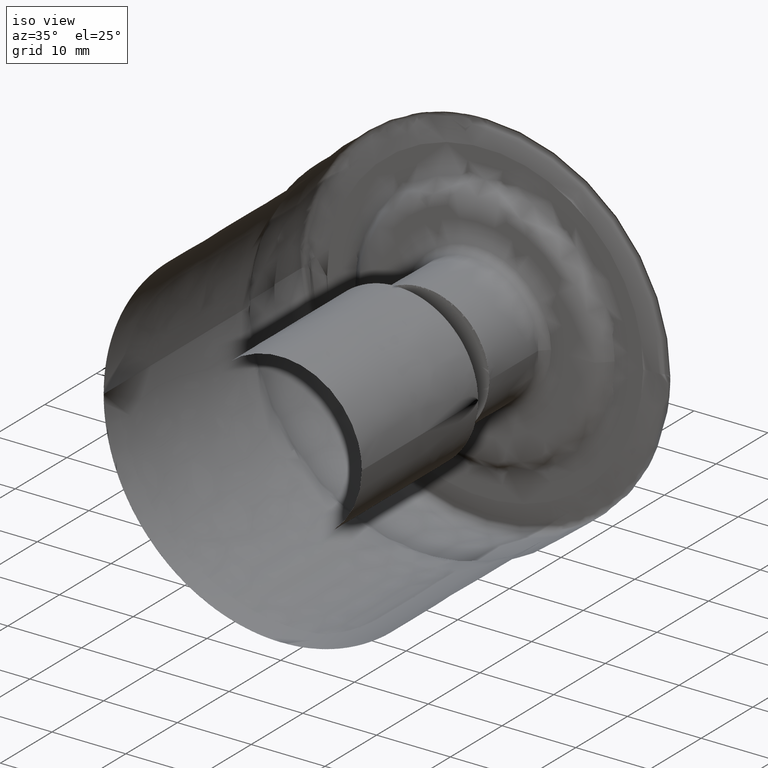
[diagram: clean part render]
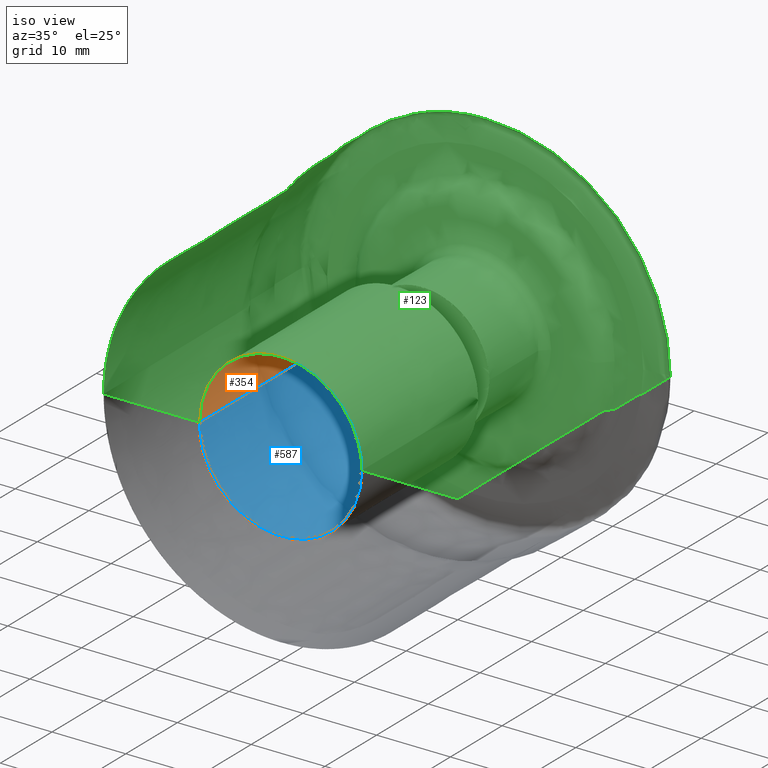
[diagram: same view with three faces highlighted in distinct colors, each labeled with its STEP entity id]
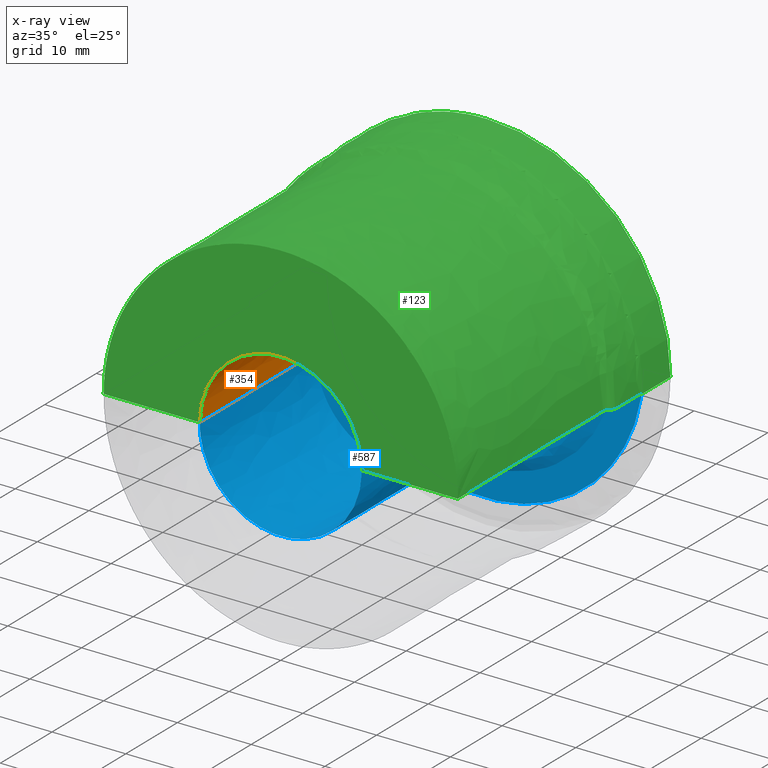
[diagram: x-ray of the same camera — body ghosted, the three highlighted faces saturated]
A machine part, iso view with three faces highlighted in distinct colors.
The next image is the same camera in x-ray (body ghosted, the three faces saturated) — at least one of them is partly hidden behind the body in this view.
Their STEP definitions:

[orange] entity #354 — the highlighted face is a freeform B-spline surface patch.
#1 = CARTESIAN_POINT ( 'NONE',  ( 10.99999999999998800, 22.49999999999995400, 10.99999999999998800 ) ) ;
#5 = CARTESIAN_POINT ( 'NONE',  ( 9.000000000000000000, 32.25000000000000000, -8.725320270984438000E-016 ) ) ;
#6 = CARTESIAN_POINT ( 'NONE',  ( -19.50143935573665000, 39.57339999999999900, 2.423091854117725100E-015 ) ) ;
#9 = CARTESIAN_POINT ( 'NONE',  ( 7.041486534478670200E-016, 22.50000000000000000, 11.00000000000000000 ) ) ;
#10 = CARTESIAN_POINT ( 'NONE',  ( 11.00000000000000000, 0.0000000000000000000, 1.347066989204614000E-015 ) ) ;
#12 = CARTESIAN_POINT ( 'NONE',  ( -10.99999999999998800, 22.49999999999995400, 10.99999999999998800 ) ) ;
#13 = CARTESIAN_POINT ( 'NONE',  ( -21.42947871147335100, 39.57339999999999900, 0.0000000000000000000 ) ) ;
#18 = CARTESIAN_POINT ( 'NONE',  ( -21.42947871147335100, 39.57339999999999900, 0.0000000000000000000 ) ) ;
#26 = CARTESIAN_POINT ( 'NONE',  ( 19.50143935573666100, 39.57340000000000700, 19.50143935573666100 ) ) ;
#46 = CARTESIAN_POINT ( 'NONE',  ( 19.50143935573665000, 39.57339999999999900, -3.493319974603384700E-017 ) ) ;
#48 =( BOUNDED_SURFACE ( )  B_SPLINE_SURFACE ( 2, 2, ( 
 ( #288, #631, #273, #375, #677 ),
 ( #216, #617, #276, #26, #46 ),
 ( #457, #494, #294, #58, #181 ),
 ( #467, #757, #397, #735, #322 ),
 ( #764, #351, #700, #640, #120 ),
 ( #404, #179, #628, #437, #325 ),
 ( #674, #439, #565, #91, #308 ),
 ( #300, #297, #252, #241, #714 ),
 ( #710, #651, #644, #595, #593 ),
 ( #589, #543, #534, #482, #5 ),
 ( #76, #531, #527, #473, #424 ),
 ( #419, #414, #366, #303, #256 ),
 ( #248, #246, #243, #239, #198 ),
 ( #194, #192, #201, #188, #185 ),
 ( #138, #135, #131, #127, #125 ),
 ( #124, #80, #71, #67, #63 ),
 ( #62, #12, #9, #1, #585 ),
 ( #528, #479, #470, #539, #301 ),
 ( #305, #480, #532, #535, #590 ) ),
 .UNSPECIFIED., .F., .F., .F. ) 
 B_SPLINE_SURFACE_WITH_KNOTS ( ( 3, 2, 2, 2, 2, 2, 2, 2, 2, 3 ),
 ( 3, 2, 3 ),
 ( 56.69872792115900500, 60.55480663263239900, 62.77993025167030100, 68.77993025167039300, 70.19414381404350000, 79.69414381404371300, 82.69414381404371300, 87.69414381404381200, 92.69414381404391200, 115.1941438140444100 ),
 ( 0.0000000000000000000, 1.570796326794895000, 3.141592653589795300 ),
 .UNSPECIFIED. ) 
 GEOMETRIC_REPRESENTATION_ITEM ( )  RATIONAL_B_SPLINE_SURFACE ( (
 ( 1.000000000000000000, 0.7071067811865480200, 1.000000000000000000, 0.7071067811865480200, 1.000000000000000000),
 ( 1.000000000000000000, 0.7071067811865480200, 1.000000000000000000, 0.7071067811865480200, 1.000000000000000000),
 ( 1.000000000000000000, 0.7071067811865480200, 1.000000000000000000, 0.7071067811865480200, 1.000000000000000000),
 ( 1.000000000000000000, 0.7071067811865480200, 1.000000000000000000, 0.7071067811865480200, 1.000000000000000000),
 ( 1.000000000000000000, 0.7071067811865480200, 1.000000000000000000, 0.7071067811865480200, 1.000000000000000000),
 ( 1.000000000000000000, 0.7071067811865480200, 1.000000000000000000, 0.7071067811865480200, 1.000000000000000000),
 ( 1.000000000000000000, 0.7071067811865480200, 1.000000000000000000, 0.7071067811865480200, 1.000000000000000000),
 ( 1.000000000000000000, 0.7071067811865480200, 1.000000000000000000, 0.7071067811865480200, 1.000000000000000000),
 ( 1.000000000000000000, 0.7071067811865480200, 1.000000000000000000, 0.7071067811865480200, 1.000000000000000000),
 ( 1.000000000000000000, 0.7071067811865480200, 1.000000000000000000, 0.7071067811865480200, 1.000000000000000000),
 ( 1.000000000000000000, 0.7071067811865480200, 1.000000000000000000, 0.7071067811865480200, 1.000000000000000000),
 ( 1.000000000000000000, 0.7071067811865480200, 1.000000000000000000, 0.7071067811865480200, 1.000000000000000000),
 ( 1.000000000000000000, 0.7071067811865480200, 1.000000000000000000, 0.7071067811865480200, 1.000000000000000000),
 ( 1.000000000000000000, 0.7071067811865480200, 1.000000000000000000, 0.7071067811865480200, 1.000000000000000000),
 ( 1.000000000000000000, 0.7071067811865480200, 1.000000000000000000, 0.7071067811865480200, 1.000000000000000000),
 ( 1.000000000000000000, 0.7071067811865480200, 1.000000000000000000, 0.7071067811865480200, 1.000000000000000000),
 ( 1.000000000000000000, 0.7071067811865480200, 1.000000000000000000, 0.7071067811865480200, 1.000000000000000000),
 ( 1.000000000000000000, 0.7071067811865480200, 1.000000000000000000, 0.7071067811865480200, 1.000000000000000000),
 ( 1.000000000000000000, 0.7071067811865480200, 1.000000000000000000, 0.7071067811865480200, 1.000000000000000000) ) ) 
 REPRESENTATION_ITEM ( '' )  SURFACE ( )  );
#53 = CARTESIAN_POINT ( 'NONE',  ( -1.312133789458579900E-015, 39.57339999999999900, 21.42947871147335100 ) ) ;
#58 = CARTESIAN_POINT ( 'NONE',  ( 17.57339999999999600, 39.57340000000000700, 17.57339999999999600 ) ) ;
#62 = CARTESIAN_POINT ( 'NONE',  ( -11.00000000000000000, 22.50000000000000000, 1.377682148050173800E-015 ) ) ;
#63 = CARTESIAN_POINT ( 'NONE',  ( 8.500000000000000000, 22.50000000000000000, -3.367667473011539900E-016 ) ) ;
#67 = CARTESIAN_POINT ( 'NONE',  ( 8.500000000000001800, 22.49999999999995400, 8.500000000000001800 ) ) ;
#71 = CARTESIAN_POINT ( 'NONE',  ( 8.572244476756639800E-016, 22.50000000000000000, 8.500000000000000000 ) ) ;
#75 = VERTEX_POINT ( 'NONE', #228 ) ;
#76 = CARTESIAN_POINT ( 'NONE',  ( -9.000000000000000000, 27.50000000000000000, 1.683833736505769900E-015 ) ) ;
#77 = CARTESIAN_POINT ( 'NONE',  ( -17.57339999999999900, 39.57339999999999900, 2.423091854117725100E-015 ) ) ;
#80 = CARTESIAN_POINT ( 'NONE',  ( -8.499999999999989300, 22.49999999999995400, 8.500000000000001800 ) ) ;
#91 = CARTESIAN_POINT ( 'NONE',  ( 9.999999999999998200, 37.99999999999997200, 9.999999999999984000 ) ) ;
#96 = EDGE_CURVE ( 'NONE', #75, #362, #566, .T. ) ;
#120 = CARTESIAN_POINT ( 'NONE',  ( 16.00000000000000000, 38.00000000000000000, -3.673819061467129800E-016 ) ) ;
#124 = CARTESIAN_POINT ( 'NONE',  ( -8.500000000000000000, 22.50000000000000000, 1.377682148050173800E-015 ) ) ;
#125 = CARTESIAN_POINT ( 'NONE',  ( 6.000000000000000000, 22.50000000000000000, -6.429183357567480600E-016 ) ) ;
#127 = CARTESIAN_POINT ( 'NONE',  ( 5.999999999999995600, 22.49999999999995400, 5.999999999999995600 ) ) ;
#128 = CARTESIAN_POINT ( 'NONE',  ( -16.78670000000000300, 38.78670000000000300, 2.374921963190119600E-015 ) ) ;
#131 = CARTESIAN_POINT ( 'NONE',  ( 1.010300241903460100E-015, 22.50000000000000000, 6.000000000000000000 ) ) ;
#132 = CARTESIAN_POINT ( 'NONE',  ( -16.00000000000000000, 38.00000000000000000, 2.326752072262514800E-015 ) ) ;
#135 = CARTESIAN_POINT ( 'NONE',  ( -5.999999999999995600, 22.49999999999995400, 5.999999999999995600 ) ) ;
#136 = CARTESIAN_POINT ( 'NONE',  ( -13.00000000000000000, 38.00000000000000000, 2.326752072262514800E-015 ) ) ;
#138 = CARTESIAN_POINT ( 'NONE',  ( -6.000000000000000000, 22.50000000000000000, 1.377682148050173800E-015 ) ) ;
#158 = FACE_OUTER_BOUND ( 'NONE', #186, .T. ) ;
#165 = CARTESIAN_POINT ( 'NONE',  ( 8.500000000000000000, 22.50000000000000000, -3.367667473011539900E-016 ) ) ;
#169 = VERTEX_POINT ( 'NONE', #390 ) ;
#179 = CARTESIAN_POINT ( 'NONE',  ( -12.99999999999999300, 37.99999999999997200, 12.99999999999999300 ) ) ;
#181 = CARTESIAN_POINT ( 'NONE',  ( 17.57339999999999900, 39.57339999999999900, -2.710421242915070400E-016 ) ) ;
#185 = CARTESIAN_POINT ( 'NONE',  ( 6.000000000000000000, 25.00000000000000000, -7.959941299845450200E-016 ) ) ;
#186 = EDGE_LOOP ( 'NONE', ( #618, #471, #632, #713 ) ) ;
#188 = CARTESIAN_POINT ( 'NONE',  ( 5.999999999999995600, 25.00000000000000400, 5.999999999999995600 ) ) ;
#189 = CARTESIAN_POINT ( 'NONE',  ( -10.00000000000000000, 38.00000000000000000, 2.326752072262514800E-015 ) ) ;
#192 = CARTESIAN_POINT ( 'NONE',  ( -5.999999999999995600, 25.00000000000000400, 5.999999999999995600 ) ) ;
#193 = CARTESIAN_POINT ( 'NONE',  ( -9.500000000000000000, 37.50000000000000000, 2.296136913416959700E-015 ) ) ;
#194 = CARTESIAN_POINT ( 'NONE',  ( -6.000000000000000000, 25.00000000000000000, 1.530757942277970000E-015 ) ) ;
#195 = CARTESIAN_POINT ( 'NONE',  ( -9.000000000000000000, 37.00000000000000000, 2.265521754571399900E-015 ) ) ;
#198 = CARTESIAN_POINT ( 'NONE',  ( 6.000000000000000000, 27.50000000000000000, -9.490699242123421800E-016 ) ) ;
#199 = CARTESIAN_POINT ( 'NONE',  ( -9.000000000000000000, 32.25000000000000000, 1.974677745538585300E-015 ) ) ;
#201 = CARTESIAN_POINT ( 'NONE',  ( 1.163376036131258000E-015, 25.00000000000000000, 6.000000000000000000 ) ) ;
#216 = CARTESIAN_POINT ( 'NONE',  ( -19.50143935573665000, 39.57339999999999900, 2.423091854117725100E-015 ) ) ;
#225 = CARTESIAN_POINT ( 'NONE',  ( -10.99999999999998800, 0.0000000000000000000, 10.99999999999998800 ) ) ;
#228 = CARTESIAN_POINT ( 'NONE',  ( -11.00000000000000000, 0.0000000000000000000, 0.0000000000000000000 ) ) ;
#239 = CARTESIAN_POINT ( 'NONE',  ( 5.999999999999995600, 27.49999999999997200, 5.999999999999995600 ) ) ;
#241 = CARTESIAN_POINT ( 'NONE',  ( 9.499999999999992900, 37.50000000000000000, 9.499999999999992900 ) ) ;
#243 = CARTESIAN_POINT ( 'NONE',  ( 1.316451830359055900E-015, 27.50000000000000000, 6.000000000000000000 ) ) ;
#244 = CARTESIAN_POINT ( 'NONE',  ( -9.000000000000000000, 27.50000000000000000, 1.683833736505769900E-015 ) ) ;
#246 = CARTESIAN_POINT ( 'NONE',  ( -5.999999999999995600, 27.49999999999997200, 5.999999999999995600 ) ) ;
#247 = CARTESIAN_POINT ( 'NONE',  ( -7.500000000000000000, 27.50000000000000000, 1.683833736505769900E-015 ) ) ;
#248 = CARTESIAN_POINT ( 'NONE',  ( -6.000000000000000000, 27.50000000000000000, 1.683833736505769900E-015 ) ) ;
#249 = CARTESIAN_POINT ( 'NONE',  ( -6.000000000000000000, 27.50000000000000000, 1.683833736505769900E-015 ) ) ;
#252 = CARTESIAN_POINT ( 'NONE',  ( 1.714448895351329900E-015, 37.50000000000000000, 9.500000000000000000 ) ) ;
#253 = CARTESIAN_POINT ( 'NONE',  ( -6.000000000000000000, 25.00000000000000000, 1.530757942277970000E-015 ) ) ;
#255 = CARTESIAN_POINT ( 'NONE',  ( 21.42947871147335100, 39.57339999999999900, 2.624267578917160200E-015 ) ) ;
#256 = CARTESIAN_POINT ( 'NONE',  ( 7.500000000000000000, 27.50000000000000000, -7.653789711389859800E-016 ) ) ;
#257 = CARTESIAN_POINT ( 'NONE',  ( 16.00000000000000000, 38.00000000000000000, -3.673819061467129800E-016 ) ) ;
#261 = CARTESIAN_POINT ( 'NONE',  ( 11.00000000000000000, 11.25000000000000000, 6.582259151795279700E-016 ) ) ;
#273 = CARTESIAN_POINT ( 'NONE',  ( -1.312133789458579900E-015, 39.57339999999999900, 21.42947871147335100 ) ) ;
#276 = CARTESIAN_POINT ( 'NONE',  ( 1.229012526931880100E-015, 39.57339999999999900, 19.50143935573665000 ) ) ;
#278 = CARTESIAN_POINT ( 'NONE',  ( -11.00000000000000000, 0.0000000000000000000, 0.0000000000000000000 ) ) ;
#288 = CARTESIAN_POINT ( 'NONE',  ( -21.42947871147335100, 39.57339999999999900, 0.0000000000000000000 ) ) ;
#294 = CARTESIAN_POINT ( 'NONE',  ( 1.347066989204614000E-015, 39.57339999999999900, 17.57339999999999900 ) ) ;
#297 = CARTESIAN_POINT ( 'NONE',  ( -9.499999999999992900, 37.50000000000000000, 9.499999999999992900 ) ) ;
#300 = CARTESIAN_POINT ( 'NONE',  ( -9.500000000000000000, 37.50000000000000000, 2.296136913416959700E-015 ) ) ;
#301 = CARTESIAN_POINT ( 'NONE',  ( 11.00000000000000000, 11.25000000000000000, 6.582259151795279700E-016 ) ) ;
#303 = CARTESIAN_POINT ( 'NONE',  ( 7.499999999999999100, 27.49999999999997200, 7.499999999999999100 ) ) ;
#304 = CARTESIAN_POINT ( 'NONE',  ( -6.000000000000000000, 22.50000000000000000, 1.377682148050173800E-015 ) ) ;
#305 = CARTESIAN_POINT ( 'NONE',  ( -11.00000000000000000, 0.0000000000000000000, 0.0000000000000000000 ) ) ;
#308 = CARTESIAN_POINT ( 'NONE',  ( 10.00000000000000000, 38.00000000000000000, -1.102145718440140100E-015 ) ) ;
#309 = CARTESIAN_POINT ( 'NONE',  ( 10.00000000000000000, 38.00000000000000000, -1.102145718440140100E-015 ) ) ;
#310 = CARTESIAN_POINT ( 'NONE',  ( 9.000000000000000000, 32.25000000000000000, -8.725320270984438000E-016 ) ) ;
#322 = CARTESIAN_POINT ( 'NONE',  ( 16.78670000000000300, 38.78670000000000300, -3.192120152191100100E-016 ) ) ;
#325 = CARTESIAN_POINT ( 'NONE',  ( 13.00000000000000000, 38.00000000000000000, -7.347638122934259600E-016 ) ) ;
#351 = CARTESIAN_POINT ( 'NONE',  ( -15.99999999999998900, 37.99999999999997200, 15.99999999999998900 ) ) ;
#354 = ADVANCED_FACE ( 'NONE', ( #158 ), #48, .T. ) ;
#357 = CARTESIAN_POINT ( 'NONE',  ( -8.500000000000000000, 22.50000000000000000, 1.377682148050173800E-015 ) ) ;
#359 = CARTESIAN_POINT ( 'NONE',  ( -11.00000000000000000, 22.50000000000000000, 1.377682148050173800E-015 ) ) ;
#360 = CARTESIAN_POINT ( 'NONE',  ( -11.00000000000000000, 11.25000000000000000, 6.888410740250869100E-016 ) ) ;
#362 = VERTEX_POINT ( 'NONE', #10 ) ;
#366 = CARTESIAN_POINT ( 'NONE',  ( 1.224606353822375900E-015, 27.50000000000000000, 7.500000000000000000 ) ) ;
#368 = EDGE_CURVE ( 'NONE', #169, #75, #533, .T. ) ;
#374 = CARTESIAN_POINT ( 'NONE',  ( 21.42947871147335100, 39.57339999999999900, 2.624267578917160200E-015 ) ) ;
#375 = CARTESIAN_POINT ( 'NONE',  ( 21.42947871147331500, 39.57339999999994300, 21.42947871147331500 ) ) ;
#383 = CARTESIAN_POINT ( 'NONE',  ( -6.735334946023079900E-016, 0.0000000000000000000, 11.00000000000000000 ) ) ;
#388 = CARTESIAN_POINT ( 'NONE',  ( -21.42947871147331500, 39.57339999999994300, 21.42947871147331500 ) ) ;
#390 = CARTESIAN_POINT ( 'NONE',  ( -21.42947871147335100, 39.57339999999999900, 0.0000000000000000000 ) ) ;
#392 = CARTESIAN_POINT ( 'NONE',  ( 11.00000000000000000, 22.50000000000000000, -3.061515884555940100E-017 ) ) ;
#397 = CARTESIAN_POINT ( 'NONE',  ( 1.347066989204614000E-015, 38.78670000000000300, 16.78670000000000300 ) ) ;
#404 = CARTESIAN_POINT ( 'NONE',  ( -13.00000000000000000, 38.00000000000000000, 2.326752072262514800E-015 ) ) ;
#414 = CARTESIAN_POINT ( 'NONE',  ( -7.499999999999999100, 27.49999999999997200, 7.499999999999999100 ) ) ;
#415 = CARTESIAN_POINT ( 'NONE',  ( -11.00000000000000000, 0.0000000000000000000, 0.0000000000000000000 ) ) ;
#419 = CARTESIAN_POINT ( 'NONE',  ( -7.500000000000000000, 27.50000000000000000, 1.683833736505769900E-015 ) ) ;
#424 = CARTESIAN_POINT ( 'NONE',  ( 9.000000000000000000, 27.50000000000000000, -5.816880180656290000E-016 ) ) ;
#426 = CARTESIAN_POINT ( 'NONE',  ( 19.50143935573665000, 39.57339999999999900, -3.493319974603384700E-017 ) ) ;
#428 = CARTESIAN_POINT ( 'NONE',  ( 9.500000000000000000, 37.50000000000000000, -1.132760877285699900E-015 ) ) ;
#437 = CARTESIAN_POINT ( 'NONE',  ( 12.99999999999999300, 37.99999999999997200, 12.99999999999999300 ) ) ;
#439 = CARTESIAN_POINT ( 'NONE',  ( -9.999999999999984000, 37.99999999999997200, 9.999999999999998200 ) ) ;
#448 = CARTESIAN_POINT ( 'NONE',  ( 10.99999999999998800, 0.0000000000000000000, 10.99999999999998800 ) ) ;
#457 = CARTESIAN_POINT ( 'NONE',  ( -17.57339999999999900, 39.57339999999999900, 2.423091854117725100E-015 ) ) ;
#467 = CARTESIAN_POINT ( 'NONE',  ( -16.78670000000000300, 38.78670000000000300, 2.374921963190119600E-015 ) ) ;
#470 = CARTESIAN_POINT ( 'NONE',  ( 1.530757942277970300E-017, 11.25000000000000000, 11.00000000000000000 ) ) ;
#471 = ORIENTED_EDGE ( 'NONE', *, *, #96, .T. ) ;
#473 = CARTESIAN_POINT ( 'NONE',  ( 8.999999999999996400, 27.49999999999997200, 8.999999999999996400 ) ) ;
#479 = CARTESIAN_POINT ( 'NONE',  ( -10.99999999999998800, 11.24999999999999500, 10.99999999999998800 ) ) ;
#480 = CARTESIAN_POINT ( 'NONE',  ( -10.99999999999998800, 0.0000000000000000000, 10.99999999999998800 ) ) ;
#482 = CARTESIAN_POINT ( 'NONE',  ( 8.999999999999996400, 32.24999999999996400, 8.999999999999996400 ) ) ;
#484 = CARTESIAN_POINT ( 'NONE',  ( 17.57339999999999900, 39.57339999999999900, -2.710421242915070400E-016 ) ) ;
#494 = CARTESIAN_POINT ( 'NONE',  ( -17.57339999999996700, 39.57340000000000700, 17.57339999999999600 ) ) ;
#527 = CARTESIAN_POINT ( 'NONE',  ( 1.132760877285699900E-015, 27.50000000000000000, 9.000000000000000000 ) ) ;
#528 = CARTESIAN_POINT ( 'NONE',  ( -11.00000000000000000, 11.25000000000000000, 6.888410740250869100E-016 ) ) ;
#531 = CARTESIAN_POINT ( 'NONE',  ( -8.999999999999996400, 27.49999999999997200, 8.999999999999996400 ) ) ;
#532 = CARTESIAN_POINT ( 'NONE',  ( -6.735334946023079900E-016, 0.0000000000000000000, 11.00000000000000000 ) ) ;
#533 = B_SPLINE_CURVE_WITH_KNOTS ( 'NONE', 2,
 ( #13, #6, #77, #128, #132, #136, #189, #193, #195, #199, #244, #247, #249, #253, #304, #357, #359, #360, #415 ),
 .UNSPECIFIED., .F., .F.,
 ( 3, 2, 2, 2, 2, 2, 2, 2, 2, 3 ),
 ( 56.69872792115900500, 60.55480663263239900, 62.77993025167030100, 68.77993025167039300, 70.19414381404350000, 79.69414381404371300, 82.69414381404371300, 87.69414381404381200, 92.69414381404391200, 115.1941438140444100 ),
 .UNSPECIFIED. ) ;
#534 = CARTESIAN_POINT ( 'NONE',  ( 1.423604886318514000E-015, 32.25000000000000000, 9.000000000000000000 ) ) ;
#535 = CARTESIAN_POINT ( 'NONE',  ( 10.99999999999998800, 0.0000000000000000000, 10.99999999999998800 ) ) ;
#539 = CARTESIAN_POINT ( 'NONE',  ( 10.99999999999998800, 11.24999999999999500, 10.99999999999998800 ) ) ;
#541 = CARTESIAN_POINT ( 'NONE',  ( 13.00000000000000000, 38.00000000000000000, -7.347638122934259600E-016 ) ) ;
#543 = CARTESIAN_POINT ( 'NONE',  ( -8.999999999999996400, 32.24999999999996400, 8.999999999999996400 ) ) ;
#565 = CARTESIAN_POINT ( 'NONE',  ( 1.714448895351329900E-015, 38.00000000000000000, 10.00000000000000000 ) ) ;
#566 =( BOUNDED_CURVE ( )  B_SPLINE_CURVE ( 2, ( #278, #225, #383, #448, #629 ),
 .UNSPECIFIED., .F., .F. ) 
 B_SPLINE_CURVE_WITH_KNOTS ( ( 3, 2, 3 ),
 ( 0.0000000000000000000, 1.570796326794895000, 3.141592653589795300 ),
 .UNSPECIFIED. ) 
 CURVE ( )  GEOMETRIC_REPRESENTATION_ITEM ( )  RATIONAL_B_SPLINE_CURVE ( ( 1.000000000000000000, 0.7071067811865480200, 1.000000000000000000, 0.7071067811865480200, 1.000000000000000000 ) ) 
 REPRESENTATION_ITEM ( '' )  );
#575 = CARTESIAN_POINT ( 'NONE',  ( 21.42947871147335100, 39.57339999999999900, 2.624267578917160200E-015 ) ) ;
#585 = CARTESIAN_POINT ( 'NONE',  ( 11.00000000000000000, 22.50000000000000000, -3.061515884555940100E-017 ) ) ;
#589 = CARTESIAN_POINT ( 'NONE',  ( -9.000000000000000000, 32.25000000000000000, 1.974677745538585300E-015 ) ) ;
#590 = CARTESIAN_POINT ( 'NONE',  ( 11.00000000000000000, 0.0000000000000000000, 1.347066989204614000E-015 ) ) ;
#591 = CARTESIAN_POINT ( 'NONE',  ( 6.000000000000000000, 25.00000000000000000, -7.959941299845450200E-016 ) ) ;
#593 = CARTESIAN_POINT ( 'NONE',  ( 9.000000000000000000, 37.00000000000000000, -1.163376036131258000E-015 ) ) ;
#595 = CARTESIAN_POINT ( 'NONE',  ( 8.999999999999996400, 36.99999999999996400, 8.999999999999996400 ) ) ;
#602 = CARTESIAN_POINT ( 'NONE',  ( 11.00000000000000000, 0.0000000000000000000, 1.347066989204614000E-015 ) ) ;
#603 = EDGE_CURVE ( 'NONE', #169, #673, #729, .T. ) ;
#612 = CARTESIAN_POINT ( 'NONE',  ( 21.42947871147331500, 39.57339999999994300, 21.42947871147331500 ) ) ;
#617 = CARTESIAN_POINT ( 'NONE',  ( -19.50143935573666100, 39.57340000000000700, 19.50143935573666100 ) ) ;
#618 = ORIENTED_EDGE ( 'NONE', *, *, #368, .T. ) ;
#628 = CARTESIAN_POINT ( 'NONE',  ( 1.530757942277970000E-015, 38.00000000000000000, 13.00000000000000000 ) ) ;
#629 = CARTESIAN_POINT ( 'NONE',  ( 11.00000000000000000, 0.0000000000000000000, 1.347066989204614000E-015 ) ) ;
#631 = CARTESIAN_POINT ( 'NONE',  ( -21.42947871147331500, 39.57339999999994300, 21.42947871147331500 ) ) ;
#632 = ORIENTED_EDGE ( 'NONE', *, *, #657, .F. ) ;
#640 = CARTESIAN_POINT ( 'NONE',  ( 15.99999999999998900, 37.99999999999997200, 15.99999999999998900 ) ) ;
#644 = CARTESIAN_POINT ( 'NONE',  ( 1.714448895351329900E-015, 37.00000000000000000, 9.000000000000000000 ) ) ;
#647 = CARTESIAN_POINT ( 'NONE',  ( 6.000000000000000000, 27.50000000000000000, -9.490699242123421800E-016 ) ) ;
#650 = CARTESIAN_POINT ( 'NONE',  ( 7.500000000000000000, 27.50000000000000000, -7.653789711389859800E-016 ) ) ;
#651 = CARTESIAN_POINT ( 'NONE',  ( -8.999999999999996400, 36.99999999999996400, 8.999999999999996400 ) ) ;
#655 = CARTESIAN_POINT ( 'NONE',  ( 9.000000000000000000, 37.00000000000000000, -1.163376036131258000E-015 ) ) ;
#657 = EDGE_CURVE ( 'NONE', #673, #362, #743, .T. ) ;
#658 = CARTESIAN_POINT ( 'NONE',  ( 16.78670000000000300, 38.78670000000000300, -3.192120152191100100E-016 ) ) ;
#673 = VERTEX_POINT ( 'NONE', #374 ) ;
#674 = CARTESIAN_POINT ( 'NONE',  ( -10.00000000000000000, 38.00000000000000000, 2.326752072262514800E-015 ) ) ;
#677 = CARTESIAN_POINT ( 'NONE',  ( 21.42947871147335100, 39.57339999999999900, 2.624267578917160200E-015 ) ) ;
#700 = CARTESIAN_POINT ( 'NONE',  ( 1.347066989204614000E-015, 38.00000000000000000, 16.00000000000000000 ) ) ;
#705 = CARTESIAN_POINT ( 'NONE',  ( 6.000000000000000000, 22.50000000000000000, -6.429183357567480600E-016 ) ) ;
#710 = CARTESIAN_POINT ( 'NONE',  ( -9.000000000000000000, 37.00000000000000000, 2.265521754571399900E-015 ) ) ;
#712 = CARTESIAN_POINT ( 'NONE',  ( 9.000000000000000000, 27.50000000000000000, -5.816880180656290000E-016 ) ) ;
#713 = ORIENTED_EDGE ( 'NONE', *, *, #603, .F. ) ;
#714 = CARTESIAN_POINT ( 'NONE',  ( 9.500000000000000000, 37.50000000000000000, -1.132760877285699900E-015 ) ) ;
#729 =( BOUNDED_CURVE ( )  B_SPLINE_CURVE ( 2, ( #18, #388, #53, #612, #575 ),
 .UNSPECIFIED., .F., .T. ) 
 B_SPLINE_CURVE_WITH_KNOTS ( ( 3, 2, 3 ),
 ( 0.0000000000000000000, 1.570796326794895000, 3.141592653589795300 ),
 .UNSPECIFIED. ) 
 CURVE ( )  GEOMETRIC_REPRESENTATION_ITEM ( )  RATIONAL_B_SPLINE_CURVE ( ( 1.000000000000000000, 0.7071067811865480200, 1.000000000000000000, 0.7071067811865480200, 1.000000000000000000 ) ) 
 REPRESENTATION_ITEM ( '' )  );
#735 = CARTESIAN_POINT ( 'NONE',  ( 16.78669999999998900, 38.78669999999996100, 16.78669999999998900 ) ) ;
#743 = B_SPLINE_CURVE_WITH_KNOTS ( 'NONE', 2,
 ( #255, #426, #484, #658, #257, #541, #309, #428, #655, #310, #712, #650, #647, #591, #705, #165, #392, #261, #602 ),
 .UNSPECIFIED., .F., .F.,
 ( 3, 2, 2, 2, 2, 2, 2, 2, 2, 3 ),
 ( 56.69872792115900500, 60.55480663263239900, 62.77993025167030100, 68.77993025167039300, 70.19414381404350000, 79.69414381404371300, 82.69414381404371300, 87.69414381404381200, 92.69414381404391200, 115.1941438140444100 ),
 .UNSPECIFIED. ) ;
#757 = CARTESIAN_POINT ( 'NONE',  ( -16.78669999999998900, 38.78669999999996100, 16.78669999999998900 ) ) ;
#764 = CARTESIAN_POINT ( 'NONE',  ( -16.00000000000000000, 38.00000000000000000, 2.326752072262514800E-015 ) ) ;

[blue] entity #587 — the highlighted face is a freeform B-spline surface patch.
#3 = ORIENTED_EDGE ( 'NONE', *, *, #408, .F. ) ;
#10 = CARTESIAN_POINT ( 'NONE',  ( 11.00000000000000000, 0.0000000000000000000, 1.347066989204614000E-015 ) ) ;
#11 = CARTESIAN_POINT ( 'NONE',  ( -16.78669999999998900, 38.78669999999996100, -16.78669999999998900 ) ) ;
#15 = CARTESIAN_POINT ( 'NONE',  ( 15.99999999999998900, 37.99999999999997200, -15.99999999999998900 ) ) ;
#16 = CARTESIAN_POINT ( 'NONE',  ( 7.086429587663949700E-016, 38.78670000000000300, -16.78670000000000300 ) ) ;
#17 = CARTESIAN_POINT ( 'NONE',  ( 8.999999999999996400, 32.24999999999996400, -8.999999999999996400 ) ) ;
#21 = CARTESIAN_POINT ( 'NONE',  ( -8.500000000000000000, 22.50000000000000000, -7.041486534478670200E-016 ) ) ;
#23 = CARTESIAN_POINT ( 'NONE',  ( 1.159146127439809900E-015, 39.57339999999999900, -19.50143935573665000 ) ) ;
#27 = CARTESIAN_POINT ( 'NONE',  ( 19.50143935573666100, 39.57340000000000700, -19.50143935573666100 ) ) ;
#38 = CARTESIAN_POINT ( 'NONE',  ( -11.00000000000000000, 22.50000000000000000, -1.316451830359055900E-015 ) ) ;
#45 = CARTESIAN_POINT ( 'NONE',  ( -11.00000000000000000, 11.25000000000000000, -2.005292904384144700E-015 ) ) ;
#50 = CARTESIAN_POINT ( 'NONE',  ( -5.999999999999995600, 27.49999999999997200, -5.999999999999995600 ) ) ;
#52 = CARTESIAN_POINT ( 'NONE',  ( -3.061515884555945100E-016, 27.50000000000000000, -7.500000000000000000 ) ) ;
#55 = CARTESIAN_POINT ( 'NONE',  ( -7.499999999999999100, 27.49999999999997200, -7.499999999999999100 ) ) ;
#72 = CARTESIAN_POINT ( 'NONE',  ( -21.42947871147335100, 39.57339999999999900, -5.248535157834320400E-015 ) ) ;
#74 = CARTESIAN_POINT ( 'NONE',  ( -16.78670000000000300, 38.78670000000000300, -1.736497932751899900E-015 ) ) ;
#79 = CARTESIAN_POINT ( 'NONE',  ( 12.99999999999999300, 37.99999999999997200, -12.99999999999999300 ) ) ;
#81 = CARTESIAN_POINT ( 'NONE',  ( -16.00000000000000000, 38.00000000000000000, -1.591988259969089800E-015 ) ) ;
#84 = CARTESIAN_POINT ( 'NONE',  ( 11.00000000000000000, 0.0000000000000000000, 1.347066989204614000E-015 ) ) ;
#88 = CARTESIAN_POINT ( 'NONE',  ( 10.99999999999998800, 0.0000000000000000000, -10.99999999999998800 ) ) ;
#92 = CARTESIAN_POINT ( 'NONE',  ( 1.836909530733565100E-016, 22.50000000000000000, -8.500000000000000000 ) ) ;
#108 = CARTESIAN_POINT ( 'NONE',  ( -5.999999999999995600, 25.00000000000000400, -5.999999999999995600 ) ) ;
#111 = CARTESIAN_POINT ( 'NONE',  ( 6.000000000000000000, 25.00000000000000000, -7.959941299845450200E-016 ) ) ;
#113 = CARTESIAN_POINT ( 'NONE',  ( -7.500000000000000000, 27.50000000000000000, -1.530757942277970100E-016 ) ) ;
#119 =( BOUNDED_SURFACE ( )  B_SPLINE_SURFACE ( 2, 2, ( 
 ( #203, #372, #148, #141, #139 ),
 ( #207, #27, #23, #319, #432 ),
 ( #610, #659, #367, #422, #717 ),
 ( #653, #418, #16, #11, #74 ),
 ( #197, #15, #134, #259, #81 ),
 ( #425, #79, #137, #200, #254 ),
 ( #307, #363, #427, #598, #601 ),
 ( #481, #483, #542, #656, #660 ),
 ( #719, #364, #722, #538, #600 ),
 ( #251, #17, #478, #311, #544 ),
 ( #345, #571, #402, #516, #574 ),
 ( #520, #399, #52, #55, #113 ),
 ( #170, #174, #578, #50, #696 ),
 ( #111, #458, #171, #108, #299 ),
 ( #613, #555, #530, #495, #154 ),
 ( #270, #324, #92, #672, #552 ),
 ( #669, #209, #396, #749, #38 ),
 ( #616, #147, #572, #456, #45 ),
 ( #512, #487, #706, #267, #152 ) ),
 .UNSPECIFIED., .F., .F., .F. ) 
 B_SPLINE_SURFACE_WITH_KNOTS ( ( 3, 2, 2, 2, 2, 2, 2, 2, 2, 3 ),
 ( 3, 2, 3 ),
 ( 56.69872792115900500, 60.55480663263239900, 62.77993025167030100, 68.77993025167039300, 70.19414381404350000, 79.69414381404371300, 82.69414381404371300, 87.69414381404381200, 92.69414381404391200, 115.1941438140444100 ),
 ( 3.141592653589795300, 4.712388980384689700, 6.283185307179590700 ),
 .UNSPECIFIED. ) 
 GEOMETRIC_REPRESENTATION_ITEM ( )  RATIONAL_B_SPLINE_SURFACE ( (
 ( 1.000000000000000000, 0.7071067811865480200, 1.000000000000000000, 0.7071067811865480200, 1.000000000000000000),
 ( 1.000000000000000000, 0.7071067811865480200, 1.000000000000000000, 0.7071067811865480200, 1.000000000000000000),
 ( 1.000000000000000000, 0.7071067811865480200, 1.000000000000000000, 0.7071067811865480200, 1.000000000000000000),
 ( 1.000000000000000000, 0.7071067811865480200, 1.000000000000000000, 0.7071067811865480200, 1.000000000000000000),
 ( 1.000000000000000000, 0.7071067811865480200, 1.000000000000000000, 0.7071067811865480200, 1.000000000000000000),
 ( 1.000000000000000000, 0.7071067811865480200, 1.000000000000000000, 0.7071067811865480200, 1.000000000000000000),
 ( 1.000000000000000000, 0.7071067811865480200, 1.000000000000000000, 0.7071067811865480200, 1.000000000000000000),
 ( 1.000000000000000000, 0.7071067811865480200, 1.000000000000000000, 0.7071067811865480200, 1.000000000000000000),
 ( 1.000000000000000000, 0.7071067811865480200, 1.000000000000000000, 0.7071067811865480200, 1.000000000000000000),
 ( 1.000000000000000000, 0.7071067811865480200, 1.000000000000000000, 0.7071067811865480200, 1.000000000000000000),
 ( 1.000000000000000000, 0.7071067811865480200, 1.000000000000000000, 0.7071067811865480200, 1.000000000000000000),
 ( 1.000000000000000000, 0.7071067811865480200, 1.000000000000000000, 0.7071067811865480200, 1.000000000000000000),
 ( 1.000000000000000000, 0.7071067811865480200, 1.000000000000000000, 0.7071067811865480200, 1.000000000000000000),
 ( 1.000000000000000000, 0.7071067811865480200, 1.000000000000000000, 0.7071067811865480200, 1.000000000000000000),
 ( 1.000000000000000000, 0.7071067811865480200, 1.000000000000000000, 0.7071067811865480200, 1.000000000000000000),
 ( 1.000000000000000000, 0.7071067811865480200, 1.000000000000000000, 0.7071067811865480200, 1.000000000000000000),
 ( 1.000000000000000000, 0.7071067811865480200, 1.000000000000000000, 0.7071067811865480200, 1.000000000000000000),
 ( 1.000000000000000000, 0.7071067811865480200, 1.000000000000000000, 0.7071067811865480200, 1.000000000000000000),
 ( 1.000000000000000000, 0.7071067811865480200, 1.000000000000000000, 0.7071067811865480200, 1.000000000000000000) ) ) 
 REPRESENTATION_ITEM ( '' )  SURFACE ( )  );
#134 = CARTESIAN_POINT ( 'NONE',  ( 6.123031769111890200E-016, 38.00000000000000000, -16.00000000000000000 ) ) ;
#137 = CARTESIAN_POINT ( 'NONE',  ( 6.123031769111880100E-017, 38.00000000000000000, -13.00000000000000000 ) ) ;
#139 = CARTESIAN_POINT ( 'NONE',  ( -21.42947871147335100, 39.57339999999999900, -5.248535157834320400E-015 ) ) ;
#141 = CARTESIAN_POINT ( 'NONE',  ( -21.42947871147331500, 39.57339999999994300, -21.42947871147331500 ) ) ;
#145 = CARTESIAN_POINT ( 'NONE',  ( 2.020600483806920100E-015, 0.0000000000000000000, -11.00000000000000000 ) ) ;
#147 = CARTESIAN_POINT ( 'NONE',  ( 10.99999999999998800, 11.24999999999999500, -10.99999999999998800 ) ) ;
#148 = CARTESIAN_POINT ( 'NONE',  ( 3.936401368375745200E-015, 39.57339999999999900, -21.42947871147335100 ) ) ;
#152 = CARTESIAN_POINT ( 'NONE',  ( -11.00000000000000000, 0.0000000000000000000, -2.694133978409229600E-015 ) ) ;
#154 = CARTESIAN_POINT ( 'NONE',  ( -6.000000000000000000, 22.50000000000000000, -9.184547653667830700E-017 ) ) ;
#165 = CARTESIAN_POINT ( 'NONE',  ( 8.500000000000000000, 22.50000000000000000, -3.367667473011539900E-016 ) ) ;
#170 = CARTESIAN_POINT ( 'NONE',  ( 6.000000000000000000, 27.50000000000000000, -9.490699242123421800E-016 ) ) ;
#171 = CARTESIAN_POINT ( 'NONE',  ( -4.286122238378319900E-016, 25.00000000000000000, -6.000000000000000000 ) ) ;
#174 = CARTESIAN_POINT ( 'NONE',  ( 5.999999999999995600, 27.49999999999997200, -5.999999999999995600 ) ) ;
#180 = VERTEX_POINT ( 'NONE', #765 ) ;
#191 = B_SPLINE_CURVE_WITH_KNOTS ( 'NONE', 2,
 ( #72, #476, #529, #540, #594, #596, #599, #652, #654, #704, #708, #711, #715, #718, #548, #21, #550, #663, #728 ),
 .UNSPECIFIED., .F., .F.,
 ( 3, 2, 2, 2, 2, 2, 2, 2, 2, 3 ),
 ( 56.69872792115900500, 60.55480663263239900, 62.77993025167030100, 68.77993025167039300, 70.19414381404350000, 79.69414381404371300, 82.69414381404371300, 87.69414381404381200, 92.69414381404391200, 115.1941438140444100 ),
 .UNSPECIFIED. ) ;
#197 = CARTESIAN_POINT ( 'NONE',  ( 16.00000000000000000, 38.00000000000000000, -3.673819061467129800E-016 ) ) ;
#200 = CARTESIAN_POINT ( 'NONE',  ( -12.99999999999999300, 37.99999999999997200, -12.99999999999999300 ) ) ;
#203 = CARTESIAN_POINT ( 'NONE',  ( 21.42947871147335100, 39.57339999999999900, 2.624267578917160200E-015 ) ) ;
#204 = CARTESIAN_POINT ( 'NONE',  ( -21.42947871147335100, 39.57339999999999900, -5.248535157834320400E-015 ) ) ;
#207 = CARTESIAN_POINT ( 'NONE',  ( 19.50143935573665000, 39.57339999999999900, -3.493319974603384700E-017 ) ) ;
#208 = CARTESIAN_POINT ( 'NONE',  ( 21.42947871147335100, 39.57339999999999900, 2.624267578917160200E-015 ) ) ;
#209 = CARTESIAN_POINT ( 'NONE',  ( 10.99999999999998800, 22.49999999999995400, -10.99999999999998800 ) ) ;
#251 = CARTESIAN_POINT ( 'NONE',  ( 9.000000000000000000, 32.25000000000000000, -8.725320270984438000E-016 ) ) ;
#254 = CARTESIAN_POINT ( 'NONE',  ( -13.00000000000000000, 38.00000000000000000, -8.572244476756639800E-016 ) ) ;
#255 = CARTESIAN_POINT ( 'NONE',  ( 21.42947871147335100, 39.57339999999999900, 2.624267578917160200E-015 ) ) ;
#257 = CARTESIAN_POINT ( 'NONE',  ( 16.00000000000000000, 38.00000000000000000, -3.673819061467129800E-016 ) ) ;
#259 = CARTESIAN_POINT ( 'NONE',  ( -15.99999999999998900, 37.99999999999997200, -15.99999999999998900 ) ) ;
#261 = CARTESIAN_POINT ( 'NONE',  ( 11.00000000000000000, 11.25000000000000000, 6.582259151795279700E-016 ) ) ;
#262 = CARTESIAN_POINT ( 'NONE',  ( 21.42947871147331500, 39.57339999999994300, -21.42947871147331500 ) ) ;
#267 = CARTESIAN_POINT ( 'NONE',  ( -10.99999999999998800, 0.0000000000000000000, -10.99999999999998800 ) ) ;
#270 = CARTESIAN_POINT ( 'NONE',  ( 8.500000000000000000, 22.50000000000000000, -3.367667473011539900E-016 ) ) ;
#277 = FACE_OUTER_BOUND ( 'NONE', #350, .T. ) ;
#299 = CARTESIAN_POINT ( 'NONE',  ( -6.000000000000000000, 25.00000000000000000, 6.123031769111859200E-017 ) ) ;
#307 = CARTESIAN_POINT ( 'NONE',  ( 10.00000000000000000, 38.00000000000000000, -1.102145718440140100E-015 ) ) ;
#309 = CARTESIAN_POINT ( 'NONE',  ( 10.00000000000000000, 38.00000000000000000, -1.102145718440140100E-015 ) ) ;
#310 = CARTESIAN_POINT ( 'NONE',  ( 9.000000000000000000, 32.25000000000000000, -8.725320270984438000E-016 ) ) ;
#311 = CARTESIAN_POINT ( 'NONE',  ( -8.999999999999996400, 32.24999999999996400, -8.999999999999996400 ) ) ;
#318 =( BOUNDED_CURVE ( )  B_SPLINE_CURVE ( 2, ( #208, #262, #726, #667, #204 ),
 .UNSPECIFIED., .F., .T. ) 
 B_SPLINE_CURVE_WITH_KNOTS ( ( 3, 2, 3 ),
 ( 3.141592653589795300, 4.712388980384689700, 6.283185307179590700 ),
 .UNSPECIFIED. ) 
 CURVE ( )  GEOMETRIC_REPRESENTATION_ITEM ( )  RATIONAL_B_SPLINE_CURVE ( ( 1.000000000000000000, 0.7071067811865480200, 1.000000000000000000, 0.7071067811865480200, 1.000000000000000000 ) ) 
 REPRESENTATION_ITEM ( '' )  );
#319 = CARTESIAN_POINT ( 'NONE',  ( -19.50143935573666100, 39.57340000000000700, -19.50143935573666100 ) ) ;
#324 = CARTESIAN_POINT ( 'NONE',  ( 8.500000000000001800, 22.49999999999995400, -8.500000000000001800 ) ) ;
#340 = ORIENTED_EDGE ( 'NONE', *, *, #379, .F. ) ;
#345 = CARTESIAN_POINT ( 'NONE',  ( 9.000000000000000000, 27.50000000000000000, -5.816880180656290000E-016 ) ) ;
#350 = EDGE_LOOP ( 'NONE', ( #648, #401, #340, #3 ) ) ;
#362 = VERTEX_POINT ( 'NONE', #10 ) ;
#363 = CARTESIAN_POINT ( 'NONE',  ( 9.999999999999984000, 37.99999999999997200, -9.999999999999998200 ) ) ;
#364 = CARTESIAN_POINT ( 'NONE',  ( 8.999999999999996400, 36.99999999999996400, -8.999999999999996400 ) ) ;
#367 = CARTESIAN_POINT ( 'NONE',  ( 8.049827406216010100E-016, 39.57339999999999900, -17.57339999999999900 ) ) ;
#372 = CARTESIAN_POINT ( 'NONE',  ( 21.42947871147331500, 39.57339999999994300, -21.42947871147331500 ) ) ;
#374 = CARTESIAN_POINT ( 'NONE',  ( 21.42947871147335100, 39.57339999999999900, 2.624267578917160200E-015 ) ) ;
#376 = VERTEX_POINT ( 'NONE', #687 ) ;
#379 = EDGE_CURVE ( 'NONE', #180, #376, #191, .T. ) ;
#392 = CARTESIAN_POINT ( 'NONE',  ( 11.00000000000000000, 22.50000000000000000, -3.061515884555940100E-017 ) ) ;
#396 = CARTESIAN_POINT ( 'NONE',  ( 6.429183357567480600E-016, 22.50000000000000000, -11.00000000000000000 ) ) ;
#399 = CARTESIAN_POINT ( 'NONE',  ( 7.499999999999999100, 27.49999999999997200, -7.499999999999999100 ) ) ;
#401 = ORIENTED_EDGE ( 'NONE', *, *, #447, .T. ) ;
#402 = CARTESIAN_POINT ( 'NONE',  ( -3.061515884555945000E-017, 27.50000000000000000, -9.000000000000000000 ) ) ;
#408 = EDGE_CURVE ( 'NONE', #673, #180, #318, .T. ) ;
#418 = CARTESIAN_POINT ( 'NONE',  ( 16.78669999999998900, 38.78669999999996100, -16.78669999999998900 ) ) ;
#422 = CARTESIAN_POINT ( 'NONE',  ( -17.57339999999999600, 39.57340000000000700, -17.57339999999999600 ) ) ;
#425 = CARTESIAN_POINT ( 'NONE',  ( 13.00000000000000000, 38.00000000000000000, -7.347638122934259600E-016 ) ) ;
#426 = CARTESIAN_POINT ( 'NONE',  ( 19.50143935573665000, 39.57339999999999900, -3.493319974603384700E-017 ) ) ;
#427 = CARTESIAN_POINT ( 'NONE',  ( -4.898425415289510000E-016, 38.00000000000000000, -10.00000000000000000 ) ) ;
#428 = CARTESIAN_POINT ( 'NONE',  ( 9.500000000000000000, 37.50000000000000000, -1.132760877285699900E-015 ) ) ;
#432 = CARTESIAN_POINT ( 'NONE',  ( -19.50143935573665000, 39.57339999999999900, -2.353225454625654900E-015 ) ) ;
#447 = EDGE_CURVE ( 'NONE', #362, #376, #626, .T. ) ;
#456 = CARTESIAN_POINT ( 'NONE',  ( -10.99999999999998800, 11.24999999999999500, -10.99999999999998800 ) ) ;
#458 = CARTESIAN_POINT ( 'NONE',  ( 5.999999999999995600, 25.00000000000000400, -5.999999999999995600 ) ) ;
#476 = CARTESIAN_POINT ( 'NONE',  ( -19.50143935573665000, 39.57339999999999900, -2.353225454625654900E-015 ) ) ;
#478 = CARTESIAN_POINT ( 'NONE',  ( -3.214591678783739800E-016, 32.25000000000000000, -9.000000000000000000 ) ) ;
#481 = CARTESIAN_POINT ( 'NONE',  ( 9.500000000000000000, 37.50000000000000000, -1.132760877285699900E-015 ) ) ;
#483 = CARTESIAN_POINT ( 'NONE',  ( 9.499999999999992900, 37.50000000000000000, -9.499999999999992900 ) ) ;
#484 = CARTESIAN_POINT ( 'NONE',  ( 17.57339999999999900, 39.57339999999999900, -2.710421242915070400E-016 ) ) ;
#487 = CARTESIAN_POINT ( 'NONE',  ( 10.99999999999998800, 0.0000000000000000000, -10.99999999999998800 ) ) ;
#495 = CARTESIAN_POINT ( 'NONE',  ( -5.999999999999995600, 22.49999999999995400, -5.999999999999995600 ) ) ;
#512 = CARTESIAN_POINT ( 'NONE',  ( 11.00000000000000000, 0.0000000000000000000, 1.347066989204614000E-015 ) ) ;
#516 = CARTESIAN_POINT ( 'NONE',  ( -8.999999999999996400, 27.49999999999997200, -8.999999999999996400 ) ) ;
#520 = CARTESIAN_POINT ( 'NONE',  ( 7.500000000000000000, 27.50000000000000000, -7.653789711389859800E-016 ) ) ;
#529 = CARTESIAN_POINT ( 'NONE',  ( -17.57339999999999900, 39.57339999999999900, -1.881007605534710200E-015 ) ) ;
#530 = CARTESIAN_POINT ( 'NONE',  ( -2.755364296100349800E-016, 22.50000000000000000, -6.000000000000000000 ) ) ;
#538 = CARTESIAN_POINT ( 'NONE',  ( -8.999999999999996400, 36.99999999999996400, -8.999999999999996400 ) ) ;
#540 = CARTESIAN_POINT ( 'NONE',  ( -16.78670000000000300, 38.78670000000000300, -1.736497932751899900E-015 ) ) ;
#541 = CARTESIAN_POINT ( 'NONE',  ( 13.00000000000000000, 38.00000000000000000, -7.347638122934259600E-016 ) ) ;
#542 = CARTESIAN_POINT ( 'NONE',  ( -5.510728592200700600E-016, 37.50000000000000000, -9.500000000000000000 ) ) ;
#544 = CARTESIAN_POINT ( 'NONE',  ( -9.000000000000000000, 32.25000000000000000, -2.296136913416954900E-016 ) ) ;
#546 = CARTESIAN_POINT ( 'NONE',  ( -11.00000000000000000, 0.0000000000000000000, -2.694133978409229600E-015 ) ) ;
#548 = CARTESIAN_POINT ( 'NONE',  ( -6.000000000000000000, 22.50000000000000000, -9.184547653667830700E-017 ) ) ;
#550 = CARTESIAN_POINT ( 'NONE',  ( -11.00000000000000000, 22.50000000000000000, -1.316451830359055900E-015 ) ) ;
#552 = CARTESIAN_POINT ( 'NONE',  ( -8.500000000000000000, 22.50000000000000000, -7.041486534478670200E-016 ) ) ;
#554 = CARTESIAN_POINT ( 'NONE',  ( -10.99999999999998800, 0.0000000000000000000, -10.99999999999998800 ) ) ;
#555 = CARTESIAN_POINT ( 'NONE',  ( 5.999999999999995600, 22.49999999999995400, -5.999999999999995600 ) ) ;
#571 = CARTESIAN_POINT ( 'NONE',  ( 8.999999999999996400, 27.49999999999997200, -8.999999999999996400 ) ) ;
#572 = CARTESIAN_POINT ( 'NONE',  ( 1.331759409781834100E-015, 11.25000000000000000, -11.00000000000000000 ) ) ;
#574 = CARTESIAN_POINT ( 'NONE',  ( -9.000000000000000000, 27.50000000000000000, -5.204577003745099400E-016 ) ) ;
#578 = CARTESIAN_POINT ( 'NONE',  ( -5.816880180656290000E-016, 27.50000000000000000, -6.000000000000000000 ) ) ;
#587 = ADVANCED_FACE ( 'NONE', ( #277 ), #119, .T. ) ;
#591 = CARTESIAN_POINT ( 'NONE',  ( 6.000000000000000000, 25.00000000000000000, -7.959941299845450200E-016 ) ) ;
#594 = CARTESIAN_POINT ( 'NONE',  ( -16.00000000000000000, 38.00000000000000000, -1.591988259969089800E-015 ) ) ;
#596 = CARTESIAN_POINT ( 'NONE',  ( -13.00000000000000000, 38.00000000000000000, -8.572244476756639800E-016 ) ) ;
#598 = CARTESIAN_POINT ( 'NONE',  ( -9.999999999999998200, 37.99999999999997200, -9.999999999999998200 ) ) ;
#599 = CARTESIAN_POINT ( 'NONE',  ( -10.00000000000000000, 38.00000000000000000, -1.224606353822374100E-016 ) ) ;
#600 = CARTESIAN_POINT ( 'NONE',  ( -9.000000000000000000, 37.00000000000000000, 6.123031769111890000E-017 ) ) ;
#601 = CARTESIAN_POINT ( 'NONE',  ( -10.00000000000000000, 38.00000000000000000, -1.224606353822374100E-016 ) ) ;
#602 = CARTESIAN_POINT ( 'NONE',  ( 11.00000000000000000, 0.0000000000000000000, 1.347066989204614000E-015 ) ) ;
#610 = CARTESIAN_POINT ( 'NONE',  ( 17.57339999999999900, 39.57339999999999900, -2.710421242915070400E-016 ) ) ;
#613 = CARTESIAN_POINT ( 'NONE',  ( 6.000000000000000000, 22.50000000000000000, -6.429183357567480600E-016 ) ) ;
#616 = CARTESIAN_POINT ( 'NONE',  ( 11.00000000000000000, 11.25000000000000000, 6.582259151795279700E-016 ) ) ;
#626 =( BOUNDED_CURVE ( )  B_SPLINE_CURVE ( 2, ( #84, #88, #145, #554, #546 ),
 .UNSPECIFIED., .F., .T. ) 
 B_SPLINE_CURVE_WITH_KNOTS ( ( 3, 2, 3 ),
 ( 3.141592653589795300, 4.712388980384689700, 6.283185307179590700 ),
 .UNSPECIFIED. ) 
 CURVE ( )  GEOMETRIC_REPRESENTATION_ITEM ( )  RATIONAL_B_SPLINE_CURVE ( ( 1.000000000000000000, 0.7071067811865480200, 1.000000000000000000, 0.7071067811865480200, 1.000000000000000000 ) ) 
 REPRESENTATION_ITEM ( '' )  );
#647 = CARTESIAN_POINT ( 'NONE',  ( 6.000000000000000000, 27.50000000000000000, -9.490699242123421800E-016 ) ) ;
#648 = ORIENTED_EDGE ( 'NONE', *, *, #657, .T. ) ;
#650 = CARTESIAN_POINT ( 'NONE',  ( 7.500000000000000000, 27.50000000000000000, -7.653789711389859800E-016 ) ) ;
#652 = CARTESIAN_POINT ( 'NONE',  ( -9.500000000000000000, 37.50000000000000000, -3.061515884555934500E-017 ) ) ;
#653 = CARTESIAN_POINT ( 'NONE',  ( 16.78670000000000300, 38.78670000000000300, -3.192120152191100100E-016 ) ) ;
#654 = CARTESIAN_POINT ( 'NONE',  ( -9.000000000000000000, 37.00000000000000000, 6.123031769111890000E-017 ) ) ;
#655 = CARTESIAN_POINT ( 'NONE',  ( 9.000000000000000000, 37.00000000000000000, -1.163376036131258000E-015 ) ) ;
#656 = CARTESIAN_POINT ( 'NONE',  ( -9.499999999999992900, 37.50000000000000000, -9.499999999999992900 ) ) ;
#657 = EDGE_CURVE ( 'NONE', #673, #362, #743, .T. ) ;
#658 = CARTESIAN_POINT ( 'NONE',  ( 16.78670000000000300, 38.78670000000000300, -3.192120152191100100E-016 ) ) ;
#659 = CARTESIAN_POINT ( 'NONE',  ( 17.57339999999999600, 39.57340000000000700, -17.57339999999999600 ) ) ;
#660 = CARTESIAN_POINT ( 'NONE',  ( -9.500000000000000000, 37.50000000000000000, -3.061515884555934500E-017 ) ) ;
#663 = CARTESIAN_POINT ( 'NONE',  ( -11.00000000000000000, 11.25000000000000000, -2.005292904384144700E-015 ) ) ;
#667 = CARTESIAN_POINT ( 'NONE',  ( -21.42947871147331500, 39.57339999999994300, -21.42947871147331500 ) ) ;
#669 = CARTESIAN_POINT ( 'NONE',  ( 11.00000000000000000, 22.50000000000000000, -3.061515884555940100E-017 ) ) ;
#672 = CARTESIAN_POINT ( 'NONE',  ( -8.500000000000001800, 22.49999999999995400, -8.500000000000001800 ) ) ;
#673 = VERTEX_POINT ( 'NONE', #374 ) ;
#687 = CARTESIAN_POINT ( 'NONE',  ( -11.00000000000000000, 0.0000000000000000000, -2.694133978409229600E-015 ) ) ;
#696 = CARTESIAN_POINT ( 'NONE',  ( -6.000000000000000000, 27.50000000000000000, 2.143061119189160000E-016 ) ) ;
#704 = CARTESIAN_POINT ( 'NONE',  ( -9.000000000000000000, 32.25000000000000000, -2.296136913416954900E-016 ) ) ;
#705 = CARTESIAN_POINT ( 'NONE',  ( 6.000000000000000000, 22.50000000000000000, -6.429183357567480600E-016 ) ) ;
#706 = CARTESIAN_POINT ( 'NONE',  ( 2.020600483806920100E-015, 0.0000000000000000000, -11.00000000000000000 ) ) ;
#708 = CARTESIAN_POINT ( 'NONE',  ( -9.000000000000000000, 27.50000000000000000, -5.204577003745099400E-016 ) ) ;
#711 = CARTESIAN_POINT ( 'NONE',  ( -7.500000000000000000, 27.50000000000000000, -1.530757942277970100E-016 ) ) ;
#712 = CARTESIAN_POINT ( 'NONE',  ( 9.000000000000000000, 27.50000000000000000, -5.816880180656290000E-016 ) ) ;
#715 = CARTESIAN_POINT ( 'NONE',  ( -6.000000000000000000, 27.50000000000000000, 2.143061119189160000E-016 ) ) ;
#717 = CARTESIAN_POINT ( 'NONE',  ( -17.57339999999999900, 39.57339999999999900, -1.881007605534710200E-015 ) ) ;
#718 = CARTESIAN_POINT ( 'NONE',  ( -6.000000000000000000, 25.00000000000000000, 6.123031769111859200E-017 ) ) ;
#719 = CARTESIAN_POINT ( 'NONE',  ( 9.000000000000000000, 37.00000000000000000, -1.163376036131258000E-015 ) ) ;
#722 = CARTESIAN_POINT ( 'NONE',  ( -6.123031769111890200E-016, 37.00000000000000000, -9.000000000000000000 ) ) ;
#726 = CARTESIAN_POINT ( 'NONE',  ( 3.936401368375745200E-015, 39.57339999999999900, -21.42947871147335100 ) ) ;
#728 = CARTESIAN_POINT ( 'NONE',  ( -11.00000000000000000, 0.0000000000000000000, -2.694133978409229600E-015 ) ) ;
#743 = B_SPLINE_CURVE_WITH_KNOTS ( 'NONE', 2,
 ( #255, #426, #484, #658, #257, #541, #309, #428, #655, #310, #712, #650, #647, #591, #705, #165, #392, #261, #602 ),
 .UNSPECIFIED., .F., .F.,
 ( 3, 2, 2, 2, 2, 2, 2, 2, 2, 3 ),
 ( 56.69872792115900500, 60.55480663263239900, 62.77993025167030100, 68.77993025167039300, 70.19414381404350000, 79.69414381404371300, 82.69414381404371300, 87.69414381404381200, 92.69414381404391200, 115.1941438140444100 ),
 .UNSPECIFIED. ) ;
#749 = CARTESIAN_POINT ( 'NONE',  ( -10.99999999999998800, 22.49999999999995400, -10.99999999999998800 ) ) ;
#765 = CARTESIAN_POINT ( 'NONE',  ( -21.42947871147335100, 39.57339999999999900, -5.248535157834320400E-015 ) ) ;

[green] entity #123 — the highlighted face is a freeform B-spline surface patch.
#7 = CARTESIAN_POINT ( 'NONE',  ( -24.00000000000000000, 28.00000000000000000, 1.714448895351329900E-015 ) ) ;
#18 = CARTESIAN_POINT ( 'NONE',  ( -21.42947871147335100, 39.57339999999999900, 0.0000000000000000000 ) ) ;
#20 = ORIENTED_EDGE ( 'NONE', *, *, #699, .T. ) ;
#29 = CARTESIAN_POINT ( 'NONE',  ( 11.00000000000000000, 0.0000000000000000000, 1.347066989204614000E-015 ) ) ;
#30 = EDGE_LOOP ( 'NONE', ( #20, #150, #231, #205 ) ) ;
#31 = CARTESIAN_POINT ( 'NONE',  ( -24.77530000000000100, 29.58117358629594700, 1.811264656365035200E-015 ) ) ;
#33 = CARTESIAN_POINT ( 'NONE',  ( -1.319567806688111500E-015, 39.72753399771878700, 21.55088943592901200 ) ) ;
#34 = CARTESIAN_POINT ( 'NONE',  ( -24.77529999999995200, 29.58117358629593200, 24.77529999999995200 ) ) ;
#36 = CARTESIAN_POINT ( 'NONE',  ( 22.60941189616135100, 39.73827917245049700, 2.768762946422640000E-015 ) ) ;
#37 = CARTESIAN_POINT ( 'NONE',  ( 24.38765000000000100, 28.79058679314794800, 1.223670338621448000E-015 ) ) ;
#39 = CARTESIAN_POINT ( 'NONE',  ( 24.77530000000000100, 29.09084159066968700, 1.252757507286833100E-015 ) ) ;
#40 = CARTESIAN_POINT ( 'NONE',  ( 2.942651664722579900E-016, 29.58117358629594700, 24.77530000000000100 ) ) ;
#42 = CARTESIAN_POINT ( 'NONE',  ( 17.50000000000000000, 0.0000000000000000000, 2.143061119189159800E-015 ) ) ;
#44 = CARTESIAN_POINT ( 'NONE',  ( 24.77529999999995200, 29.58117358629593200, 24.77529999999995200 ) ) ;
#47 = CARTESIAN_POINT ( 'NONE',  ( 24.77530000000000100, 29.58117358629594700, 1.222734323420520100E-015 ) ) ;
#51 = CARTESIAN_POINT ( 'NONE',  ( -1.471625070883931200E-015, 39.99172169142091300, 24.03425502881858800 ) ) ;
#53 = CARTESIAN_POINT ( 'NONE',  ( -1.312133789458579900E-015, 39.57339999999999900, 21.42947871147335100 ) ) ;
#54 = CARTESIAN_POINT ( 'NONE',  ( 23.95324543566811200, 39.92430582025439600, 23.95324543566811200 ) ) ;
#57 = CARTESIAN_POINT ( 'NONE',  ( 24.99639354798994600, 39.60653528401005000, 3.061074236151315200E-015 ) ) ;
#60 = CARTESIAN_POINT ( 'NONE',  ( -24.60404800753579800, 39.99659884574440100, 0.0000000000000000000 ) ) ;
#61 = CARTESIAN_POINT ( 'NONE',  ( -1.530127072476440100E-015, 37.04831764200499600, 24.98969677399495000 ) ) ;
#69 = CARTESIAN_POINT ( 'NONE',  ( -24.00000000000000700, 28.49033199562621700, 1.744472079217641000E-015 ) ) ;
#83 = CARTESIAN_POINT ( 'NONE',  ( -24.77530000000000100, 34.14831597555569700, 2.090912235799985300E-015 ) ) ;
#93 = CARTESIAN_POINT ( 'NONE',  ( 21.55088943592901200, 39.72753399771878700, 2.639135613376223000E-015 ) ) ;
#95 = CARTESIAN_POINT ( 'NONE',  ( 21.74709072520795100, 39.72926814383114900, 2.663162547924135000E-015 ) ) ;
#97 = CARTESIAN_POINT ( 'NONE',  ( -24.77530000000000100, 31.86474478092580400, 1.951088446082509800E-015 ) ) ;
#99 = CARTESIAN_POINT ( 'NONE',  ( -1.384381473211320000E-015, 39.73827917245049700, 22.60941189616135100 ) ) ;
#100 = CARTESIAN_POINT ( 'NONE',  ( -24.77529999999995200, 31.86474478092580000, 24.77529999999995200 ) ) ;
#102 = CARTESIAN_POINT ( 'NONE',  ( 21.42947871147335100, 39.57339999999999900, 2.624267578917160200E-015 ) ) ;
#103 = CARTESIAN_POINT ( 'NONE',  ( 4.340889561897325200E-016, 31.86474478092580400, 24.77530000000000100 ) ) ;
#105 = CARTESIAN_POINT ( 'NONE',  ( -24.98300000000000100, 34.49009999999965000, 0.0000000000000000000 ) ) ;
#106 = CARTESIAN_POINT ( 'NONE',  ( 24.77529999999995200, 31.86474478092580000, 24.77529999999995200 ) ) ;
#109 = CARTESIAN_POINT ( 'NONE',  ( 24.96573568026041600, 34.26659041497175900, 3.057319854189694500E-015 ) ) ;
#110 = CARTESIAN_POINT ( 'NONE',  ( 24.77530000000000100, 31.86474478092580400, 1.082910533703044000E-015 ) ) ;
#112 = CARTESIAN_POINT ( 'NONE',  ( 24.03425502881858800, 39.99172169142094900, 24.03425502881858800 ) ) ;
#115 = CARTESIAN_POINT ( 'NONE',  ( 24.60404800753579800, 39.99659884574440100, 3.013027351977914900E-015 ) ) ;
#117 = CARTESIAN_POINT ( 'NONE',  ( -24.98299999999996100, 34.49009999999963600, 24.98299999999996100 ) ) ;
#121 = CARTESIAN_POINT ( 'NONE',  ( -24.37184582017497500, 39.99457836357623100, 24.37184582017497500 ) ) ;
#122 = CARTESIAN_POINT ( 'NONE',  ( 24.99639354798994600, 39.60653528401005000, 3.061074236151315200E-015 ) ) ;
#123 = ADVANCED_FACE ( 'NONE', ( #519 ), #268, .T. ) ;
#140 =( BOUNDED_CURVE ( )  B_SPLINE_CURVE ( 2, ( #727, #721, #314, #312, #265 ),
 .UNSPECIFIED., .F., .T. ) 
 B_SPLINE_CURVE_WITH_KNOTS ( ( 3, 2, 3 ),
 ( 0.0000000000000000000, 1.570796326794895000, 3.141592653589795300 ),
 .UNSPECIFIED. ) 
 CURVE ( )  GEOMETRIC_REPRESENTATION_ITEM ( )  RATIONAL_B_SPLINE_CURVE ( ( 1.000000000000000000, 0.7071067811865480200, 1.000000000000000000, 0.7071067811865480200, 1.000000000000000000 ) ) 
 REPRESENTATION_ITEM ( '' )  );
#143 = CARTESIAN_POINT ( 'NONE',  ( -21.74709072520795100, 39.72926814383114900, 0.0000000000000000000 ) ) ;
#144 = CARTESIAN_POINT ( 'NONE',  ( -24.77530000000000100, 31.86474478092580400, 1.951088446082509800E-015 ) ) ;
#150 = ORIENTED_EDGE ( 'NONE', *, *, #603, .T. ) ;
#153 = CARTESIAN_POINT ( 'NONE',  ( -1.312133789458579900E-015, 39.57339999999999900, 21.42947871147335100 ) ) ;
#155 = CARTESIAN_POINT ( 'NONE',  ( 5.739127459072069900E-016, 34.14831597555569700, 24.77530000000000100 ) ) ;
#156 = CARTESIAN_POINT ( 'NONE',  ( -24.38764999999997600, 28.79058679314797000, 24.38764999999997600 ) ) ;
#159 = CARTESIAN_POINT ( 'NONE',  ( -21.55088943592901200, 39.72753399771876600, 21.55088943592901200 ) ) ;
#161 = CARTESIAN_POINT ( 'NONE',  ( -1.437181672460572100E-015, 39.74729020106985200, 23.47173306711470200 ) ) ;
#163 = CARTESIAN_POINT ( 'NONE',  ( 21.74709072520795100, 39.72926814383114900, 2.663162547924135000E-015 ) ) ;
#164 = CARTESIAN_POINT ( 'NONE',  ( -24.38765000000000100, 28.79058679314794800, 1.762856775858180300E-015 ) ) ;
#168 = CARTESIAN_POINT ( 'NONE',  ( 24.77530000000000100, 31.86474478092580400, 1.082910533703044000E-015 ) ) ;
#169 = VERTEX_POINT ( 'NONE', #390 ) ;
#172 = CARTESIAN_POINT ( 'NONE',  ( 24.00000000000000700, 28.49033199562621700, 1.194583169956062600E-015 ) ) ;
#175 = CARTESIAN_POINT ( 'NONE',  ( -24.96573568026041600, 34.26659041497175900, 0.0000000000000000000 ) ) ;
#177 = CARTESIAN_POINT ( 'NONE',  ( 24.13964317964475000, 39.99261137805715500, 2.956156041679799800E-015 ) ) ;
#182 = CARTESIAN_POINT ( 'NONE',  ( -1.506513675988960000E-015, 39.99659884574440100, 24.60404800753579800 ) ) ;
#183 = CARTESIAN_POINT ( 'NONE',  ( -24.00000000000000000, 0.0000000000000000000, 0.0000000000000000000 ) ) ;
#184 = CARTESIAN_POINT ( 'NONE',  ( -1.530537118075659900E-015, 39.60653528401005000, 24.99639354798994600 ) ) ;
#205 = ORIENTED_EDGE ( 'NONE', *, *, #465, .F. ) ;
#206 = CARTESIAN_POINT ( 'NONE',  ( -24.98300000000000100, 34.49009999999965000, 0.0000000000000000000 ) ) ;
#213 = CARTESIAN_POINT ( 'NONE',  ( 24.77530000000000100, 29.58117358629594700, 1.222734323420520100E-015 ) ) ;
#214 = CARTESIAN_POINT ( 'NONE',  ( 23.99999999999996400, 28.49033199562621000, 23.99999999999996400 ) ) ;
#218 = CARTESIAN_POINT ( 'NONE',  ( -1.331581273962068100E-015, 39.72926814383114900, 21.74709072520795100 ) ) ;
#219 = CARTESIAN_POINT ( 'NONE',  ( 24.38764999999997600, 28.79058679314797000, 24.38764999999997600 ) ) ;
#221 = CARTESIAN_POINT ( 'NONE',  ( -23.47173306711470200, 39.74729020106985200, 0.0000000000000000000 ) ) ;
#223 = CARTESIAN_POINT ( 'NONE',  ( 21.55088943592901200, 39.72753399771879400, 2.639135613376223000E-015 ) ) ;
#227 = CARTESIAN_POINT ( 'NONE',  ( 24.98300000000000100, 34.49009999999965000, 3.059434053754444800E-015 ) ) ;
#230 = CARTESIAN_POINT ( 'NONE',  ( -24.03425502881858800, 39.99172169142094900, 24.03425502881858800 ) ) ;
#231 = ORIENTED_EDGE ( 'NONE', *, *, #260, .F. ) ;
#233 = CARTESIAN_POINT ( 'NONE',  ( 23.74398100623139400, 39.75013512017142100, 2.907703000526878800E-015 ) ) ;
#235 = CARTESIAN_POINT ( 'NONE',  ( 24.88164363951650100, 39.88346396135984400, 3.047021889449604700E-015 ) ) ;
#236 = CARTESIAN_POINT ( 'NONE',  ( -17.50000000000000000, 0.0000000000000000000, 0.0000000000000000000 ) ) ;
#237 = CARTESIAN_POINT ( 'NONE',  ( 24.88164363951649000, 39.88346396135984400, 24.88164363951649000 ) ) ;
#238 = CARTESIAN_POINT ( 'NONE',  ( 24.60404800753579800, 39.99659884574440100, 3.013027351977914900E-015 ) ) ;
#240 = CARTESIAN_POINT ( 'NONE',  ( -24.99639354798994600, 39.60653528401005000, 0.0000000000000000000 ) ) ;
#260 = EDGE_CURVE ( 'NONE', #355, #673, #668, .T. ) ;
#265 = CARTESIAN_POINT ( 'NONE',  ( 11.00000000000000000, 0.0000000000000000000, 1.347066989204614000E-015 ) ) ;
#268 =( BOUNDED_SURFACE ( )  B_SPLINE_SURFACE ( 2, 2, ( 
 ( #282, #755, #285, #289, #327 ),
 ( #339, #343, #387, #391, #398 ),
 ( #440, #443, #451, #455, #506 ),
 ( #511, #514, #559, #569, #573 ),
 ( #615, #619, #622, #633, #563 ),
 ( #380, #330, #675, #214, #172 ),
 ( #164, #156, #678, #219, #37 ),
 ( #689, #740, #744, #748, #683 ),
 ( #31, #34, #40, #44, #47 ),
 ( #97, #100, #103, #106, #110 ),
 ( #751, #694, #155, #759, #407 ),
 ( #175, #497, #524, #378, #109 ),
 ( #105, #117, #293, #635, #227 ),
 ( #761, #271, #61, #298, #646 ),
 ( #240, #586, #184, #526, #122 ),
 ( #469, #353, #702, #296, #766 ),
 ( #411, #643, #642, #237, #701 ),
 ( #295, #582, #349, #698, #763 ),
 ( #60, #409, #182, #525, #238 ),
 ( #584, #121, #468, #352, #347 ),
 ( #753, #329, #382, #333, #292 ),
 ( #637, #230, #51, #112, #515 ),
 ( #460, #466, #576, #54, #462 ),
 ( #556, #335, #750, #280, #682 ),
 ( #221, #625, #161, #562, #747 ),
 ( #502, #446, #99, #386, #36 ),
 ( #680, #558, #218, #621, #95 ),
 ( #499, #159, #33, #442, #93 ),
 ( #742, #553, #153, #670, #614 ) ),
 .UNSPECIFIED., .F., .F., .T. ) 
 B_SPLINE_SURFACE_WITH_KNOTS ( ( 3, 2, 2, 2, 2, 2, 2, 2, 2, 2, 2, 2, 2, 2, 3 ),
 ( 3, 2, 3 ),
 ( 0.0000000000000000000, 13.00000000000000000, 41.00000000000000000, 41.88051121514720200, 42.76102243029440300, 47.32816481955410400, 47.72810932741119700, 52.84456214187059700, 53.14432677780929700, 53.44409141374799800, 53.90851335681800500, 54.10703332021369500, 54.62005808878330300, 56.34479459099009800, 56.69872792115900500 ),
 ( 0.0000000000000000000, 1.570796326794895000, 3.141592653589795300 ),
 .UNSPECIFIED. ) 
 GEOMETRIC_REPRESENTATION_ITEM ( )  RATIONAL_B_SPLINE_SURFACE ( (
 ( 1.000000000000000000, 0.7071067811865480200, 1.000000000000000000, 0.7071067811865480200, 1.000000000000000000),
 ( 1.000000000000000000, 0.7071067811865480200, 1.000000000000000000, 0.7071067811865480200, 1.000000000000000000),
 ( 1.000000000000000000, 0.7071067811865480200, 1.000000000000000000, 0.7071067811865480200, 1.000000000000000000),
 ( 1.000000000000000000, 0.7071067811865480200, 1.000000000000000000, 0.7071067811865480200, 1.000000000000000000),
 ( 1.000000000000000000, 0.7071067811865480200, 1.000000000000000000, 0.7071067811865480200, 1.000000000000000000),
 ( 0.8978724853786330700, 0.6348917230520509900, 0.8978724853786330700, 0.6348917230520509900, 0.8978724853786330700),
 ( 1.000000000000000000, 0.7071067811865480200, 1.000000000000000000, 0.7071067811865480200, 1.000000000000000000),
 ( 0.8978724853786330700, 0.6348917230520509900, 0.8978724853786330700, 0.6348917230520509900, 0.8978724853786330700),
 ( 1.000000000000000000, 0.7071067811865480200, 1.000000000000000000, 0.7071067811865480200, 1.000000000000000000),
 ( 1.000000000000000000, 0.7071067811865480200, 1.000000000000000000, 0.7071067811865480200, 1.000000000000000000),
 ( 1.000000000000000000, 0.7071067811865480200, 1.000000000000000000, 0.7071067811865480200, 1.000000000000000000),
 ( 0.8920349467165550300, 0.6307639598786570800, 0.8920349467165550300, 0.6307639598786570800, 0.8920349467165550300),
 ( 1.000000000000000000, 0.7071067811865480200, 1.000000000000000000, 0.7071067811865480200, 1.000000000000000000),
 ( 1.000000000000000000, 0.7071067811865480200, 1.000000000000000000, 0.7071067811865480200, 1.000000000000000000),
 ( 1.000000000000000000, 0.7071067811865480200, 1.000000000000000000, 0.7071067811865480200, 1.000000000000000000),
 ( 0.9228151349896920300, 0.6525288397327910800, 0.9228151349896920300, 0.6525288397327910800, 0.9228151349896920300),
 ( 1.000000000000000000, 0.7071067811865480200, 1.000000000000000000, 0.7071067811865480200, 1.000000000000000000),
 ( 0.9228151349896920300, 0.6525288397327910800, 0.9228151349896920300, 0.6525288397327910800, 0.9228151349896920300),
 ( 1.000000000000000000, 0.7071067811865480200, 1.000000000000000000, 0.7071067811865480200, 1.000000000000000000),
 ( 1.000000000000000000, 0.7071067811865480200, 1.000000000000000000, 0.7071067811865480200, 1.000000000000000000),
 ( 1.000000000000000000, 0.7071067811865480200, 1.000000000000000000, 0.7071067811865480200, 1.000000000000000000),
 ( 0.9418178813543789400, 0.6659658105484279600, 0.9418178813543789400, 0.6659658105484279600, 0.9418178813543789400),
 ( 1.000000000000000000, 0.7071067811865480200, 1.000000000000000000, 0.7071067811865480200, 1.000000000000000000),
 ( 0.9421499427126159800, 0.6662006133866079600, 0.9421499427126159800, 0.6662006133866079600, 0.9421499427126159800),
 ( 1.000000000000000000, 0.7071067811865480200, 1.000000000000000000, 0.7071067811865480200, 1.000000000000000000),
 ( 1.000000000000000000, 0.7071067811865480200, 1.000000000000000000, 0.7071067811865480200, 1.000000000000000000),
 ( 1.000000000000000000, 0.7071067811865480200, 1.000000000000000000, 0.7071067811865480200, 1.000000000000000000),
 ( 0.9019307842641251000, 0.6377613737140640500, 0.9019307842641251000, 0.6377613737140640500, 0.9019307842641251000),
 ( 1.000000000000000000, 0.7071067811865480200, 1.000000000000000000, 0.7071067811865480200, 1.000000000000000000) ) ) 
 REPRESENTATION_ITEM ( '' )  SURFACE ( )  );
#271 = CARTESIAN_POINT ( 'NONE',  ( -24.98969677399497500, 37.04831764200498900, 24.98969677399497500 ) ) ;
#274 = CARTESIAN_POINT ( 'NONE',  ( 11.00000000000000000, 0.0000000000000000000, 1.347066989204614000E-015 ) ) ;
#280 = CARTESIAN_POINT ( 'NONE',  ( 23.74398100623136500, 39.75013512017142900, 23.74398100623136500 ) ) ;
#282 = CARTESIAN_POINT ( 'NONE',  ( -11.00000000000000000, 0.0000000000000000000, 0.0000000000000000000 ) ) ;
#285 = CARTESIAN_POINT ( 'NONE',  ( -6.735334946023079900E-016, 0.0000000000000000000, 11.00000000000000000 ) ) ;
#289 = CARTESIAN_POINT ( 'NONE',  ( 10.99999999999998800, 0.0000000000000000000, 10.99999999999998800 ) ) ;
#292 = CARTESIAN_POINT ( 'NONE',  ( 24.13964317964475000, 39.99261137805715500, 2.956156041679799800E-015 ) ) ;
#293 = CARTESIAN_POINT ( 'NONE',  ( -1.529717026877220000E-015, 34.49009999999965000, 24.98300000000000100 ) ) ;
#295 = CARTESIAN_POINT ( 'NONE',  ( -24.76646075411625200, 39.99797464198817900, 0.0000000000000000000 ) ) ;
#296 = CARTESIAN_POINT ( 'NONE',  ( 24.99682652491677400, 39.76895328073157300, 24.99682652491677400 ) ) ;
#298 = CARTESIAN_POINT ( 'NONE',  ( 24.98969677399497500, 37.04831764200498900, 24.98969677399497500 ) ) ;
#312 = CARTESIAN_POINT ( 'NONE',  ( 10.99999999999998800, 0.0000000000000000000, 10.99999999999998800 ) ) ;
#314 = CARTESIAN_POINT ( 'NONE',  ( -6.735334946023079900E-016, 0.0000000000000000000, 11.00000000000000000 ) ) ;
#323 = CARTESIAN_POINT ( 'NONE',  ( -11.00000000000000000, 0.0000000000000000000, 0.0000000000000000000 ) ) ;
#327 = CARTESIAN_POINT ( 'NONE',  ( 11.00000000000000000, 0.0000000000000000000, 1.347066989204614000E-015 ) ) ;
#329 = CARTESIAN_POINT ( 'NONE',  ( -24.13964317964474300, 39.99261137805714100, 24.13964317964474300 ) ) ;
#330 = CARTESIAN_POINT ( 'NONE',  ( -23.99999999999996400, 28.49033199562621000, 23.99999999999996400 ) ) ;
#331 =( BOUNDED_CURVE ( )  B_SPLINE_CURVE ( 2, ( #723, #236, #183, #641, #7, #69, #703, #767, #430, #144, #83, #547, #206, #369, #385, #568, #394, #445, #624, #564, #504, #450, #389, #509, #501, #337, #143, #605, #732 ),
 .UNSPECIFIED., .F., .T. ) 
 B_SPLINE_CURVE_WITH_KNOTS ( ( 3, 2, 2, 2, 2, 2, 2, 2, 2, 2, 2, 2, 2, 2, 3 ),
 ( 0.0000000000000000000, 13.00000000000000000, 41.00000000000000000, 41.88051121514719500, 42.76102243029441000, 47.32816481955410400, 47.72810932741119700, 52.84456214187059000, 53.14432677780929700, 53.44409141374799800, 53.90851335681800500, 54.10703332021369500, 54.62005808878330300, 56.34479459099009800, 56.69872792115901200 ),
 .UNSPECIFIED. ) 
 CURVE ( )  GEOMETRIC_REPRESENTATION_ITEM ( )  RATIONAL_B_SPLINE_CURVE ( ( 1.000000000000000000, 1.000000000000000000, 1.000000000000000000, 1.000000000000000000, 1.000000000000000000, 0.8978724853786330700, 1.000000000000000000, 0.8978724853786330700, 1.000000000000000000, 1.000000000000000000, 1.000000000000000000, 0.8920349467165550300, 1.000000000000000000, 1.000000000000000000, 1.000000000000000000, 0.9228151349896920300, 1.000000000000000000, 0.9228151349896920300, 1.000000000000000000, 1.000000000000000000, 1.000000000000000000, 0.9418178813543789400, 1.000000000000000000, 0.9421499427126159800, 1.000000000000000000, 1.000000000000000000, 1.000000000000000000, 0.9019307842641251000, 1.000000000000000000 ) ) 
 REPRESENTATION_ITEM ( '' )  );
#333 = CARTESIAN_POINT ( 'NONE',  ( 24.13964317964474300, 39.99261137805714100, 24.13964317964474300 ) ) ;
#335 = CARTESIAN_POINT ( 'NONE',  ( -23.74398100623136500, 39.75013512017142900, 23.74398100623136500 ) ) ;
#337 = CARTESIAN_POINT ( 'NONE',  ( -22.60941189616135100, 39.73827917245049700, 0.0000000000000000000 ) ) ;
#338 = CARTESIAN_POINT ( 'NONE',  ( 24.00000000000000000, 28.00000000000000000, 1.224606353822375900E-015 ) ) ;
#339 = CARTESIAN_POINT ( 'NONE',  ( -17.50000000000000000, 0.0000000000000000000, 0.0000000000000000000 ) ) ;
#342 = CARTESIAN_POINT ( 'NONE',  ( 22.60941189616135100, 39.73827917245049700, 2.768762946422640000E-015 ) ) ;
#343 = CARTESIAN_POINT ( 'NONE',  ( -17.49999999999998200, 0.0000000000000000000, 17.49999999999998200 ) ) ;
#347 = CARTESIAN_POINT ( 'NONE',  ( 24.37184582017500000, 39.99457836357624500, 2.984591724576565000E-015 ) ) ;
#349 = CARTESIAN_POINT ( 'NONE',  ( -1.516458260059162900E-015, 39.99797464198817900, 24.76646075411625200 ) ) ;
#352 = CARTESIAN_POINT ( 'NONE',  ( 24.37184582017497500, 39.99457836357623100, 24.37184582017497500 ) ) ;
#353 = CARTESIAN_POINT ( 'NONE',  ( -24.99682652491677400, 39.76895328073157300, 24.99682652491677400 ) ) ;
#355 = VERTEX_POINT ( 'NONE', #29 ) ;
#369 = CARTESIAN_POINT ( 'NONE',  ( -24.98969677399495000, 37.04831764200499600, 0.0000000000000000000 ) ) ;
#374 = CARTESIAN_POINT ( 'NONE',  ( 21.42947871147335100, 39.57339999999999900, 2.624267578917160200E-015 ) ) ;
#378 = CARTESIAN_POINT ( 'NONE',  ( 24.96573568026043700, 34.26659041497172400, 24.96573568026043700 ) ) ;
#380 = CARTESIAN_POINT ( 'NONE',  ( -24.00000000000000700, 28.49033199562621700, 1.744472079217641000E-015 ) ) ;
#382 = CARTESIAN_POINT ( 'NONE',  ( -1.478078020839899900E-015, 39.99261137805715500, 24.13964317964475000 ) ) ;
#385 = CARTESIAN_POINT ( 'NONE',  ( -24.99639354798994600, 39.60653528401005000, 0.0000000000000000000 ) ) ;
#386 = CARTESIAN_POINT ( 'NONE',  ( 22.60941189616135100, 39.73827917245047600, 22.60941189616135100 ) ) ;
#387 = CARTESIAN_POINT ( 'NONE',  ( -1.071530559594580100E-015, 0.0000000000000000000, 17.50000000000000000 ) ) ;
#388 = CARTESIAN_POINT ( 'NONE',  ( -21.42947871147331500, 39.57339999999994300, 21.42947871147331500 ) ) ;
#389 = CARTESIAN_POINT ( 'NONE',  ( -23.95324543566814800, 39.92430582025439600, 0.0000000000000000000 ) ) ;
#390 = CARTESIAN_POINT ( 'NONE',  ( -21.42947871147335100, 39.57339999999999900, 0.0000000000000000000 ) ) ;
#391 = CARTESIAN_POINT ( 'NONE',  ( 17.49999999999998200, 0.0000000000000000000, 17.49999999999998200 ) ) ;
#394 = CARTESIAN_POINT ( 'NONE',  ( -24.88164363951650100, 39.88346396135984400, 0.0000000000000000000 ) ) ;
#395 = CARTESIAN_POINT ( 'NONE',  ( 24.98300000000000100, 34.49009999999965000, 3.059434053754444800E-015 ) ) ;
#398 = CARTESIAN_POINT ( 'NONE',  ( 17.50000000000000000, 0.0000000000000000000, 2.143061119189159800E-015 ) ) ;
#406 = CARTESIAN_POINT ( 'NONE',  ( 24.76646075411625200, 39.99797464198817900, 3.032916520118326200E-015 ) ) ;
#407 = CARTESIAN_POINT ( 'NONE',  ( 24.77530000000000100, 34.14831597555569700, 9.430867439855699400E-016 ) ) ;
#409 = CARTESIAN_POINT ( 'NONE',  ( -24.60404800753581600, 39.99659884574435900, 24.60404800753581600 ) ) ;
#411 = CARTESIAN_POINT ( 'NONE',  ( -24.88164363951650100, 39.88346396135984400, 0.0000000000000000000 ) ) ;
#430 = CARTESIAN_POINT ( 'NONE',  ( -24.77530000000000100, 29.58117358629594700, 1.811264656365035200E-015 ) ) ;
#440 = CARTESIAN_POINT ( 'NONE',  ( -24.00000000000000000, 0.0000000000000000000, 0.0000000000000000000 ) ) ;
#442 = CARTESIAN_POINT ( 'NONE',  ( 21.55088943592901200, 39.72753399771876600, 21.55088943592901200 ) ) ;
#443 = CARTESIAN_POINT ( 'NONE',  ( -23.99999999999999600, 0.0000000000000000000, 23.99999999999999600 ) ) ;
#445 = CARTESIAN_POINT ( 'NONE',  ( -24.76646075411625200, 39.99797464198817900, 0.0000000000000000000 ) ) ;
#446 = CARTESIAN_POINT ( 'NONE',  ( -22.60941189616135100, 39.73827917245047600, 22.60941189616135100 ) ) ;
#450 = CARTESIAN_POINT ( 'NONE',  ( -24.03425502881858800, 39.99172169142091300, 0.0000000000000000000 ) ) ;
#451 = CARTESIAN_POINT ( 'NONE',  ( -1.469527624586851900E-015, 0.0000000000000000000, 24.00000000000000000 ) ) ;
#453 = CARTESIAN_POINT ( 'NONE',  ( 24.98969677399495000, 37.04831764200499600, 3.060254144952880200E-015 ) ) ;
#455 = CARTESIAN_POINT ( 'NONE',  ( 23.99999999999999600, 0.0000000000000000000, 23.99999999999999600 ) ) ;
#460 = CARTESIAN_POINT ( 'NONE',  ( -23.95324543566814800, 39.92430582025439600, 0.0000000000000000000 ) ) ;
#462 = CARTESIAN_POINT ( 'NONE',  ( 23.95324543566814800, 39.92430582025439600, 2.933329655518605000E-015 ) ) ;
#465 = EDGE_CURVE ( 'NONE', #537, #355, #140, .T. ) ;
#466 = CARTESIAN_POINT ( 'NONE',  ( -23.95324543566811200, 39.92430582025439600, 23.95324543566811200 ) ) ;
#468 = CARTESIAN_POINT ( 'NONE',  ( -1.492295862288282100E-015, 39.99457836357624500, 24.37184582017500000 ) ) ;
#469 = CARTESIAN_POINT ( 'NONE',  ( -24.99682652491684100, 39.76895328073156600, 0.0000000000000000000 ) ) ;
#497 = CARTESIAN_POINT ( 'NONE',  ( -24.96573568026043700, 34.26659041497172400, 24.96573568026043700 ) ) ;
#499 = CARTESIAN_POINT ( 'NONE',  ( -21.55088943592901200, 39.72753399771878700, 0.0000000000000000000 ) ) ;
#501 = CARTESIAN_POINT ( 'NONE',  ( -23.47173306711470200, 39.74729020106985200, 0.0000000000000000000 ) ) ;
#502 = CARTESIAN_POINT ( 'NONE',  ( -22.60941189616135100, 39.73827917245049700, 0.0000000000000000000 ) ) ;
#504 = CARTESIAN_POINT ( 'NONE',  ( -24.13964317964475000, 39.99261137805715500, 0.0000000000000000000 ) ) ;
#505 = CARTESIAN_POINT ( 'NONE',  ( 24.00000000000000000, 0.0000000000000000000, 2.939055249173705000E-015 ) ) ;
#506 = CARTESIAN_POINT ( 'NONE',  ( 24.00000000000000000, 0.0000000000000000000, 2.939055249173705000E-015 ) ) ;
#509 = CARTESIAN_POINT ( 'NONE',  ( -23.74398100623139400, 39.75013512017142100, 0.0000000000000000000 ) ) ;
#510 = CARTESIAN_POINT ( 'NONE',  ( 24.96573568026041600, 34.26659041497175900, 3.057319854189694500E-015 ) ) ;
#511 = CARTESIAN_POINT ( 'NONE',  ( -24.00000000000000000, 14.00000000000000000, 8.572244476756639800E-016 ) ) ;
#513 = CARTESIAN_POINT ( 'NONE',  ( 24.38765000000000100, 28.79058679314794800, 1.223670338621448000E-015 ) ) ;
#514 = CARTESIAN_POINT ( 'NONE',  ( -23.99999999999999600, 13.99999999999999800, 23.99999999999999600 ) ) ;
#515 = CARTESIAN_POINT ( 'NONE',  ( 24.03425502881858800, 39.99172169142091300, 2.943250141767863500E-015 ) ) ;
#518 = CARTESIAN_POINT ( 'NONE',  ( 24.37184582017500000, 39.99457836357624500, 2.984591724576565000E-015 ) ) ;
#519 = FACE_OUTER_BOUND ( 'NONE', #30, .T. ) ;
#522 = CARTESIAN_POINT ( 'NONE',  ( 24.77530000000000100, 34.14831597555569700, 9.430867439855699400E-016 ) ) ;
#524 = CARTESIAN_POINT ( 'NONE',  ( -1.528659927094845900E-015, 34.26659041497175900, 24.96573568026041600 ) ) ;
#525 = CARTESIAN_POINT ( 'NONE',  ( 24.60404800753581600, 39.99659884574435900, 24.60404800753581600 ) ) ;
#526 = CARTESIAN_POINT ( 'NONE',  ( 24.99639354798992100, 39.60653528401000000, 24.99639354798992100 ) ) ;
#537 = VERTEX_POINT ( 'NONE', #323 ) ;
#547 = CARTESIAN_POINT ( 'NONE',  ( -24.96573568026041600, 34.26659041497175900, 0.0000000000000000000 ) ) ;
#553 = CARTESIAN_POINT ( 'NONE',  ( -21.42947871147331500, 39.57339999999994300, 21.42947871147331500 ) ) ;
#556 = CARTESIAN_POINT ( 'NONE',  ( -23.74398100623139000, 39.75013512017143600, 0.0000000000000000000 ) ) ;
#558 = CARTESIAN_POINT ( 'NONE',  ( -21.74709072520798300, 39.72926814383113500, 21.74709072520798300 ) ) ;
#559 = CARTESIAN_POINT ( 'NONE',  ( -6.123031769111890200E-016, 14.00000000000000000, 24.00000000000000000 ) ) ;
#562 = CARTESIAN_POINT ( 'NONE',  ( 23.47173306711471600, 39.74729020106982300, 23.47173306711471600 ) ) ;
#563 = CARTESIAN_POINT ( 'NONE',  ( 24.00000000000000000, 28.00000000000000000, 1.224606353822375900E-015 ) ) ;
#564 = CARTESIAN_POINT ( 'NONE',  ( -24.37184582017500000, 39.99457836357624500, 0.0000000000000000000 ) ) ;
#568 = CARTESIAN_POINT ( 'NONE',  ( -24.99682652491684100, 39.76895328073155900, 0.0000000000000000000 ) ) ;
#569 = CARTESIAN_POINT ( 'NONE',  ( 23.99999999999999600, 13.99999999999999800, 23.99999999999999600 ) ) ;
#573 = CARTESIAN_POINT ( 'NONE',  ( 24.00000000000000000, 14.00000000000000000, 2.081830801498040200E-015 ) ) ;
#575 = CARTESIAN_POINT ( 'NONE',  ( 21.42947871147335100, 39.57339999999999900, 2.624267578917160200E-015 ) ) ;
#576 = CARTESIAN_POINT ( 'NONE',  ( -1.466664827759301900E-015, 39.92430582025439600, 23.95324543566814800 ) ) ;
#577 = CARTESIAN_POINT ( 'NONE',  ( 24.03425502881858800, 39.99172169142091300, 2.943250141767863900E-015 ) ) ;
#580 = CARTESIAN_POINT ( 'NONE',  ( 23.47173306711470200, 39.74729020106985200, 2.874363344921144900E-015 ) ) ;
#582 = CARTESIAN_POINT ( 'NONE',  ( -24.76646075411620300, 39.99797464198818600, 24.76646075411620300 ) ) ;
#584 = CARTESIAN_POINT ( 'NONE',  ( -24.37184582017500000, 39.99457836357624500, 0.0000000000000000000 ) ) ;
#586 = CARTESIAN_POINT ( 'NONE',  ( -24.99639354798992100, 39.60653528401000000, 24.99639354798992100 ) ) ;
#603 = EDGE_CURVE ( 'NONE', #169, #673, #729, .T. ) ;
#605 = CARTESIAN_POINT ( 'NONE',  ( -21.55088943592901200, 39.72753399771879400, 0.0000000000000000000 ) ) ;
#612 = CARTESIAN_POINT ( 'NONE',  ( 21.42947871147331500, 39.57339999999994300, 21.42947871147331500 ) ) ;
#614 = CARTESIAN_POINT ( 'NONE',  ( 21.42947871147335100, 39.57339999999999900, 2.624267578917160200E-015 ) ) ;
#615 = CARTESIAN_POINT ( 'NONE',  ( -24.00000000000000000, 28.00000000000000000, 1.714448895351329900E-015 ) ) ;
#619 = CARTESIAN_POINT ( 'NONE',  ( -23.99999999999999600, 28.00000000000000700, 23.99999999999999600 ) ) ;
#621 = CARTESIAN_POINT ( 'NONE',  ( 21.74709072520798300, 39.72926814383113500, 21.74709072520798300 ) ) ;
#622 = CARTESIAN_POINT ( 'NONE',  ( 2.449212707644755000E-016, 28.00000000000000000, 24.00000000000000000 ) ) ;
#624 = CARTESIAN_POINT ( 'NONE',  ( -24.60404800753579800, 39.99659884574440100, 0.0000000000000000000 ) ) ;
#625 = CARTESIAN_POINT ( 'NONE',  ( -23.47173306711471600, 39.74729020106982300, 23.47173306711471600 ) ) ;
#633 = CARTESIAN_POINT ( 'NONE',  ( 23.99999999999999600, 28.00000000000000700, 23.99999999999999600 ) ) ;
#635 = CARTESIAN_POINT ( 'NONE',  ( 24.98299999999996100, 34.49009999999963600, 24.98299999999996100 ) ) ;
#637 = CARTESIAN_POINT ( 'NONE',  ( -24.03425502881858800, 39.99172169142091300, 0.0000000000000000000 ) ) ;
#639 = CARTESIAN_POINT ( 'NONE',  ( 23.95324543566814800, 39.92430582025439600, 2.933329655518605000E-015 ) ) ;
#641 = CARTESIAN_POINT ( 'NONE',  ( -24.00000000000000000, 14.00000000000000000, 8.572244476756639800E-016 ) ) ;
#642 = CARTESIAN_POINT ( 'NONE',  ( -1.523510944724805100E-015, 39.88346396135984400, 24.88164363951650100 ) ) ;
#643 = CARTESIAN_POINT ( 'NONE',  ( -24.88164363951649000, 39.88346396135984400, 24.88164363951649000 ) ) ;
#646 = CARTESIAN_POINT ( 'NONE',  ( 24.98969677399495000, 37.04831764200499600, 3.060254144952880200E-015 ) ) ;
#668 =( BOUNDED_CURVE ( )  B_SPLINE_CURVE ( 2, ( #274, #42, #505, #692, #338, #685, #513, #39, #213, #168, #522, #510, #395, #453, #57, #738, #235, #406, #115, #518, #177, #577, #639, #233, #580, #342, #163, #223, #102 ),
 .UNSPECIFIED., .F., .T. ) 
 B_SPLINE_CURVE_WITH_KNOTS ( ( 3, 2, 2, 2, 2, 2, 2, 2, 2, 2, 2, 2, 2, 2, 3 ),
 ( 0.0000000000000000000, 13.00000000000000000, 41.00000000000000000, 41.88051121514719500, 42.76102243029441000, 47.32816481955410400, 47.72810932741119700, 52.84456214187059000, 53.14432677780929700, 53.44409141374799800, 53.90851335681800500, 54.10703332021369500, 54.62005808878330300, 56.34479459099009800, 56.69872792115901200 ),
 .UNSPECIFIED. ) 
 CURVE ( )  GEOMETRIC_REPRESENTATION_ITEM ( )  RATIONAL_B_SPLINE_CURVE ( ( 1.000000000000000000, 1.000000000000000000, 1.000000000000000000, 1.000000000000000000, 1.000000000000000000, 0.8978724853786330700, 1.000000000000000000, 0.8978724853786330700, 1.000000000000000000, 1.000000000000000000, 1.000000000000000000, 0.8920349467165550300, 1.000000000000000000, 1.000000000000000000, 1.000000000000000000, 0.9228151349896920300, 1.000000000000000000, 0.9228151349896920300, 1.000000000000000000, 1.000000000000000000, 1.000000000000000000, 0.9418178813543789400, 1.000000000000000000, 0.9421499427126159800, 1.000000000000000000, 1.000000000000000000, 1.000000000000000000, 0.9019307842641251000, 1.000000000000000000 ) ) 
 REPRESENTATION_ITEM ( '' )  );
#670 = CARTESIAN_POINT ( 'NONE',  ( 21.42947871147331500, 39.57339999999994300, 21.42947871147331500 ) ) ;
#673 = VERTEX_POINT ( 'NONE', #374 ) ;
#675 = CARTESIAN_POINT ( 'NONE',  ( 2.749444546307902900E-016, 28.49033199562621700, 24.00000000000000700 ) ) ;
#678 = CARTESIAN_POINT ( 'NONE',  ( 2.695932186183669900E-016, 28.79058679314794800, 24.38765000000000100 ) ) ;
#680 = CARTESIAN_POINT ( 'NONE',  ( -21.74709072520795100, 39.72926814383114900, 0.0000000000000000000 ) ) ;
#682 = CARTESIAN_POINT ( 'NONE',  ( 23.74398100623139000, 39.75013512017143600, 2.907703000526878400E-015 ) ) ;
#683 = CARTESIAN_POINT ( 'NONE',  ( 24.77529999999999800, 29.09084159066968700, 1.252757507286832900E-015 ) ) ;
#685 = CARTESIAN_POINT ( 'NONE',  ( 24.00000000000000700, 28.49033199562621700, 1.194583169956062600E-015 ) ) ;
#689 = CARTESIAN_POINT ( 'NONE',  ( -24.77529999999999800, 29.09084159066968700, 1.781241472498718000E-015 ) ) ;
#692 = CARTESIAN_POINT ( 'NONE',  ( 24.00000000000000000, 14.00000000000000000, 2.081830801498040200E-015 ) ) ;
#694 = CARTESIAN_POINT ( 'NONE',  ( -24.77529999999995200, 34.14831597555567600, 24.77529999999995200 ) ) ;
#698 = CARTESIAN_POINT ( 'NONE',  ( 24.76646075411620300, 39.99797464198818600, 24.76646075411620300 ) ) ;
#699 = EDGE_CURVE ( 'NONE', #537, #169, #331, .T. ) ;
#701 = CARTESIAN_POINT ( 'NONE',  ( 24.88164363951650100, 39.88346396135984400, 3.047021889449604700E-015 ) ) ;
#702 = CARTESIAN_POINT ( 'NONE',  ( -1.530563629390442300E-015, 39.76895328073156600, 24.99682652491684100 ) ) ;
#703 = CARTESIAN_POINT ( 'NONE',  ( -24.38765000000000100, 28.79058679314794800, 1.762856775858180300E-015 ) ) ;
#721 = CARTESIAN_POINT ( 'NONE',  ( -10.99999999999998800, 0.0000000000000000000, 10.99999999999998800 ) ) ;
#723 = CARTESIAN_POINT ( 'NONE',  ( -11.00000000000000000, 0.0000000000000000000, 0.0000000000000000000 ) ) ;
#727 = CARTESIAN_POINT ( 'NONE',  ( -11.00000000000000000, 0.0000000000000000000, 0.0000000000000000000 ) ) ;
#729 =( BOUNDED_CURVE ( )  B_SPLINE_CURVE ( 2, ( #18, #388, #53, #612, #575 ),
 .UNSPECIFIED., .F., .T. ) 
 B_SPLINE_CURVE_WITH_KNOTS ( ( 3, 2, 3 ),
 ( 0.0000000000000000000, 1.570796326794895000, 3.141592653589795300 ),
 .UNSPECIFIED. ) 
 CURVE ( )  GEOMETRIC_REPRESENTATION_ITEM ( )  RATIONAL_B_SPLINE_CURVE ( ( 1.000000000000000000, 0.7071067811865480200, 1.000000000000000000, 0.7071067811865480200, 1.000000000000000000 ) ) 
 REPRESENTATION_ITEM ( '' )  );
#732 = CARTESIAN_POINT ( 'NONE',  ( -21.42947871147335100, 39.57339999999999900, 0.0000000000000000000 ) ) ;
#738 = CARTESIAN_POINT ( 'NONE',  ( 24.99682652491684100, 39.76895328073155900, 3.061127258780886700E-015 ) ) ;
#740 = CARTESIAN_POINT ( 'NONE',  ( -24.77529999999995200, 29.09084159066969000, 24.77529999999995200 ) ) ;
#742 = CARTESIAN_POINT ( 'NONE',  ( -21.42947871147335100, 39.57339999999999900, 0.0000000000000000000 ) ) ;
#744 = CARTESIAN_POINT ( 'NONE',  ( 2.642419826059429500E-016, 29.09084159066968700, 24.77529999999999800 ) ) ;
#747 = CARTESIAN_POINT ( 'NONE',  ( 23.47173306711470200, 39.74729020106985200, 2.874363344921144900E-015 ) ) ;
#748 = CARTESIAN_POINT ( 'NONE',  ( 24.77529999999995200, 29.09084159066969000, 24.77529999999995200 ) ) ;
#750 = CARTESIAN_POINT ( 'NONE',  ( -1.453851500263439200E-015, 39.75013512017143600, 23.74398100623139000 ) ) ;
#751 = CARTESIAN_POINT ( 'NONE',  ( -24.77530000000000100, 34.14831597555569700, 2.090912235799985300E-015 ) ) ;
#753 = CARTESIAN_POINT ( 'NONE',  ( -24.13964317964475000, 39.99261137805715500, 0.0000000000000000000 ) ) ;
#755 = CARTESIAN_POINT ( 'NONE',  ( -10.99999999999998800, 0.0000000000000000000, 10.99999999999998800 ) ) ;
#759 = CARTESIAN_POINT ( 'NONE',  ( 24.77529999999995200, 34.14831597555567600, 24.77529999999995200 ) ) ;
#761 = CARTESIAN_POINT ( 'NONE',  ( -24.98969677399495000, 37.04831764200499600, 0.0000000000000000000 ) ) ;
#763 = CARTESIAN_POINT ( 'NONE',  ( 24.76646075411625200, 39.99797464198817900, 3.032916520118326200E-015 ) ) ;
#766 = CARTESIAN_POINT ( 'NONE',  ( 24.99682652491684100, 39.76895328073156600, 3.061127258780887100E-015 ) ) ;
#767 = CARTESIAN_POINT ( 'NONE',  ( -24.77530000000000100, 29.09084159066968700, 1.781241472498718000E-015 ) ) ;